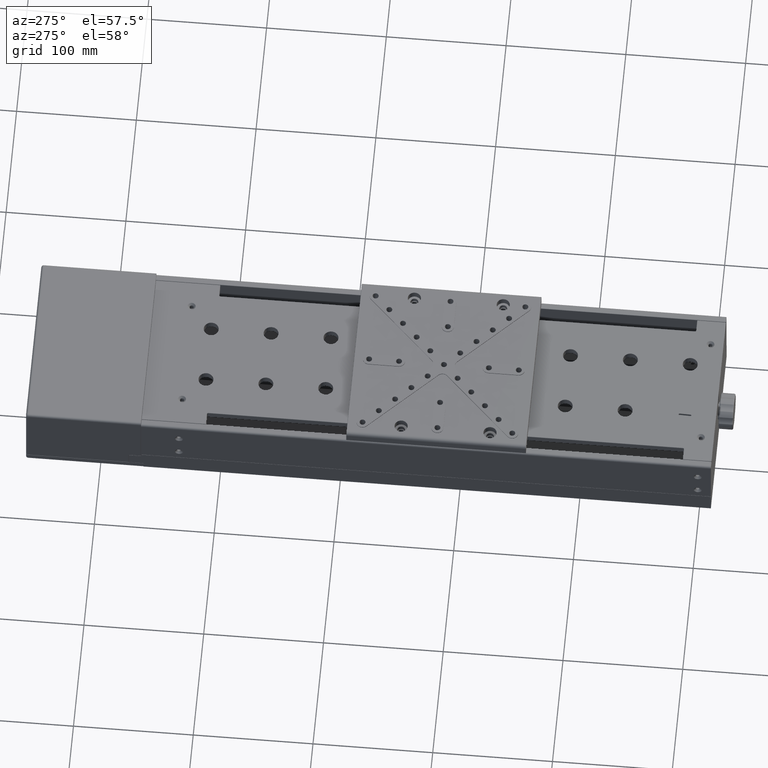
[diagram: clean part render]
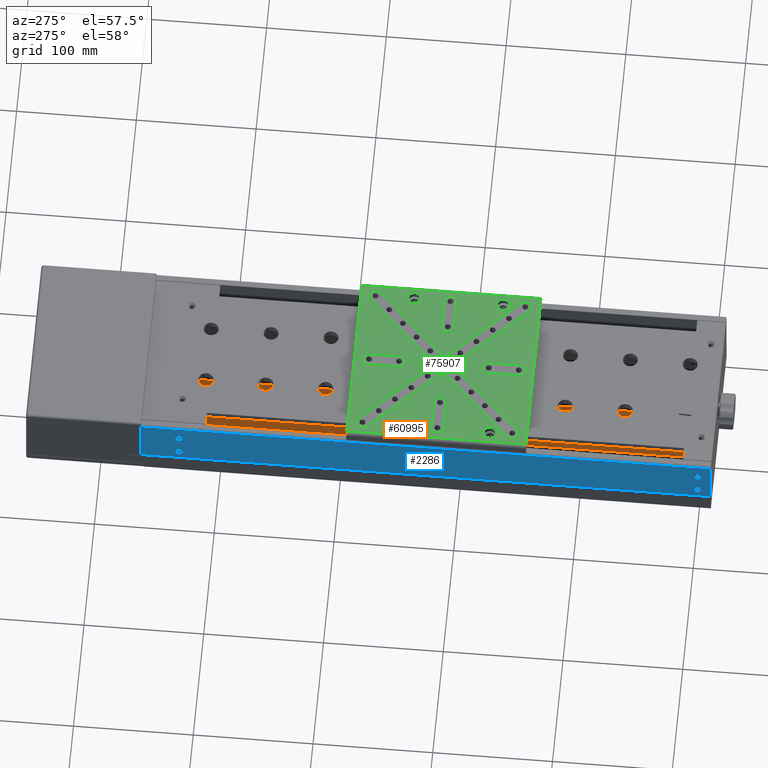
[diagram: same view with three faces highlighted in distinct colors, each labeled with its STEP entity id]
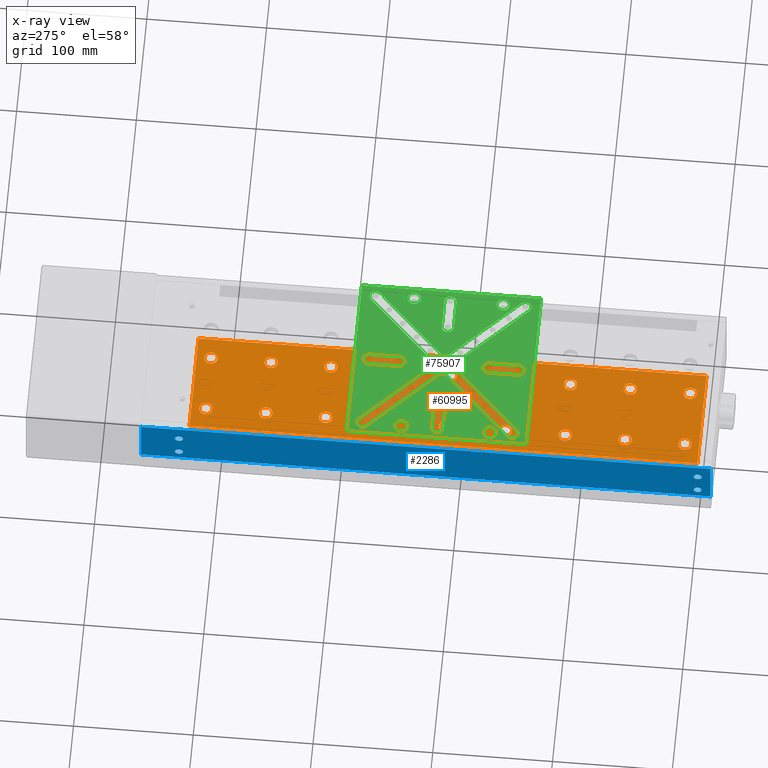
[diagram: x-ray of the same camera — body ghosted, the three highlighted faces saturated]
A machine part, auxiliary view with three faces highlighted in distinct colors.
The next image is the same camera in x-ray (body ghosted, the three faces saturated) — at least one of them is partly hidden behind the body in this view.
Their STEP definitions:

[orange] entity #60995 — the highlighted planar face has unit normal (0, 0, 1).
#36 = CIRCLE ( 'NONE', #78052, 5.500000000000005329 ) ;
#233 = CARTESIAN_POINT ( 'NONE',  ( -95.58543230288090342, 21.53119024182795371, -3.953349746444429602 ) ) ;
#397 = DIRECTION ( 'NONE',  ( 0.000000000000000000, 0.000000000000000000, 1.000000000000000000 ) ) ;
#428 = DIRECTION ( 'NONE',  ( 0.000000000000000000, 1.000000000000000000, 0.000000000000000000 ) ) ;
#708 = AXIS2_PLACEMENT_3D ( 'NONE', #65611, #34259, #4130 ) ;
#981 = DIRECTION ( 'NONE',  ( 0.000000000000000000, 1.000000000000000000, 0.000000000000000000 ) ) ;
#1045 = EDGE_LOOP ( 'NONE', ( #44303, #74152 ) ) ;
#1199 = AXIS2_PLACEMENT_3D ( 'NONE', #75484, #73870, #79975 ) ;
#1612 = DIRECTION ( 'NONE',  ( 0.000000000000000000, 1.000000000000000000, 0.000000000000000000 ) ) ;
#1657 = ORIENTED_EDGE ( 'NONE', *, *, #24803, .F. ) ;
#2285 = AXIS2_PLACEMENT_3D ( 'NONE', #27918, #34415, #15700 ) ;
#2344 = AXIS2_PLACEMENT_3D ( 'NONE', #28220, #77869, #22092 ) ;
#2462 = LINE ( 'NONE', #34199, #73320 ) ;
#2745 = AXIS2_PLACEMENT_3D ( 'NONE', #33445, #71283, #8598 ) ;
#2766 = VERTEX_POINT ( 'NONE', #59259 ) ;
#3158 = VERTEX_POINT ( 'NONE', #40842 ) ;
#3330 = FACE_BOUND ( 'NONE', #1045, .T. ) ;
#4130 = DIRECTION ( 'NONE',  ( 1.000000000000000000, 0.000000000000000000, 0.000000000000000000 ) ) ;
#4469 = CARTESIAN_POINT ( 'NONE',  ( -45.58543230288089632, 116.0311902418279999, -3.953349746444429602 ) ) ;
#4821 = ORIENTED_EDGE ( 'NONE', *, *, #69771, .F. ) ;
#4983 = EDGE_CURVE ( 'NONE', #18869, #24798, #11347, .T. ) ;
#5239 = CIRCLE ( 'NONE', #18244, 5.500000000000005329 ) ;
#5845 = CARTESIAN_POINT ( 'NONE',  ( -45.58543230288089632, 16.03119024182799990, -3.953349746444429602 ) ) ;
#6519 = VERTEX_POINT ( 'NONE', #46123 ) ;
#7262 = VERTEX_POINT ( 'NONE', #62265 ) ;
#7542 = VERTEX_POINT ( 'NONE', #67876 ) ;
#7961 = CIRCLE ( 'NONE', #2745, 5.500000000000005329 ) ;
#7989 = CARTESIAN_POINT ( 'NONE',  ( -45.58543230288089632, 166.0311902418280283, -3.953349746444429602 ) ) ;
#8355 = ORIENTED_EDGE ( 'NONE', *, *, #57483, .F. ) ;
#8480 = CARTESIAN_POINT ( 'NONE',  ( -45.58543230288089632, 171.5311902418279999, -3.953349746444429602 ) ) ;
#8558 = CARTESIAN_POINT ( 'NONE',  ( -45.58543230288079684, 210.5311902418279999, -3.953349746444429602 ) ) ;
#8598 = DIRECTION ( 'NONE',  ( 0.000000000000000000, 1.000000000000000000, 0.000000000000000000 ) ) ;
#8607 = FACE_BOUND ( 'NONE', #59104, .T. ) ;
#8767 = DIRECTION ( 'NONE',  ( 0.000000000000000000, 1.000000000000000000, 0.000000000000000000 ) ) ;
#9035 = AXIS2_PLACEMENT_3D ( 'NONE', #14142, #14553, #70319 ) ;
#9048 = DIRECTION ( 'NONE',  ( 0.000000000000000000, 0.000000000000000000, 1.000000000000000000 ) ) ;
#9072 = CIRCLE ( 'NONE', #40291, 5.500000000000005329 ) ;
#9293 = ORIENTED_EDGE ( 'NONE', *, *, #32876, .F. ) ;
#9587 = EDGE_CURVE ( 'NONE', #47694, #66536, #79772, .T. ) ;
#9826 = AXIS2_PLACEMENT_3D ( 'NONE', #45794, #51886, #70612 ) ;
#9972 = EDGE_CURVE ( 'NONE', #24798, #18869, #65464, .T. ) ;
#10130 = CARTESIAN_POINT ( 'NONE',  ( -95.58543230288090342, 10.53119024182795904, -3.953349746444429602 ) ) ;
#10215 = FACE_BOUND ( 'NONE', #61386, .T. ) ;
#10293 = CIRCLE ( 'NONE', #1199, 5.500000000000001776 ) ;
#10377 = EDGE_CURVE ( 'NONE', #6519, #58423, #35624, .T. ) ;
#10465 = DIRECTION ( 'NONE',  ( 0.000000000000000000, 0.000000000000000000, 1.000000000000000000 ) ) ;
#11141 = LINE ( 'NONE', #41701, #14893 ) ;
#11347 = CIRCLE ( 'NONE', #75055, 5.500000000000005329 ) ;
#11798 = AXIS2_PLACEMENT_3D ( 'NONE', #29139, #35619, #78775 ) ;
#11972 = AXIS2_PLACEMENT_3D ( 'NONE', #50986, #44873, #52998 ) ;
#11989 = VERTEX_POINT ( 'NONE', #36717 ) ;
#12760 = ORIENTED_EDGE ( 'NONE', *, *, #4983, .F. ) ;
#12783 = EDGE_CURVE ( 'NONE', #15372, #53252, #9072, .T. ) ;
#12846 = CARTESIAN_POINT ( 'NONE',  ( -45.58543230288089632, 66.03119024182799990, -3.953349746444429602 ) ) ;
#13018 = CARTESIAN_POINT ( 'NONE',  ( -95.58543230288080395, 166.0311902418280283, -3.953349746444429602 ) ) ;
#13046 = CIRCLE ( 'NONE', #52102, 5.500000000000005329 ) ;
#13060 = EDGE_CURVE ( 'NONE', #24240, #33370, #36, .T. ) ;
#13173 = ORIENTED_EDGE ( 'NONE', *, *, #48314, .F. ) ;
#13301 = CIRCLE ( 'NONE', #11972, 5.500000000000005329 ) ;
#13768 = CARTESIAN_POINT ( 'NONE',  ( -95.58543230288080395, 116.0311902418279999, -3.953349746444429602 ) ) ;
#14018 = EDGE_LOOP ( 'NONE', ( #9293, #45407 ) ) ;
#14142 = CARTESIAN_POINT ( 'NONE',  ( -95.58543230288080395, 216.0311902418279999, -3.953349746444429602 ) ) ;
#14386 = ORIENTED_EDGE ( 'NONE', *, *, #20815, .F. ) ;
#14553 = DIRECTION ( 'NONE',  ( 0.000000000000000000, 0.000000000000000000, 1.000000000000000000 ) ) ;
#14763 = ORIENTED_EDGE ( 'NONE', *, *, #36067, .F. ) ;
#14790 = CIRCLE ( 'NONE', #66992, 5.500000000000005329 ) ;
#14893 = VECTOR ( 'NONE', #77935, 1000.000000000000000 ) ;
#15266 = DIRECTION ( 'NONE',  ( 0.000000000000000000, 0.000000000000000000, 1.000000000000000000 ) ) ;
#15283 = CIRCLE ( 'NONE', #2344, 5.500000000000005329 ) ;
#15286 = AXIS2_PLACEMENT_3D ( 'NONE', #45710, #58320, #20041 ) ;
#15372 = VERTEX_POINT ( 'NONE', #66390 ) ;
#15444 = VERTEX_POINT ( 'NONE', #37857 ) ;
#15700 = DIRECTION ( 'NONE',  ( 0.000000000000000000, 1.000000000000000000, 0.000000000000000000 ) ) ;
#16094 = CARTESIAN_POINT ( 'NONE',  ( -45.58543230288089632, -28.46880975817204984, -3.953349746444429602 ) ) ;
#16191 = AXIS2_PLACEMENT_3D ( 'NONE', #33272, #58505, #58106 ) ;
#17355 = AXIS2_PLACEMENT_3D ( 'NONE', #64357, #26104, #76148 ) ;
#17573 = CIRCLE ( 'NONE', #27998, 5.500000000000001776 ) ;
#17979 = ORIENTED_EDGE ( 'NONE', *, *, #41058, .F. ) ;
#18244 = AXIS2_PLACEMENT_3D ( 'NONE', #47459, #47856, #79193 ) ;
#18593 = DIRECTION ( 'NONE',  ( 0.000000000000000000, 1.000000000000000000, 0.000000000000000000 ) ) ;
#18743 = EDGE_LOOP ( 'NONE', ( #56746, #20705 ) ) ;
#18869 = VERTEX_POINT ( 'NONE', #62576 ) ;
#19222 = DIRECTION ( 'NONE',  ( 0.000000000000000000, 1.000000000000000000, 0.000000000000000000 ) ) ;
#19539 = VERTEX_POINT ( 'NONE', #29441 ) ;
#19692 = DIRECTION ( 'NONE',  ( 0.000000000000000000, 1.000000000000000000, 0.000000000000000000 ) ) ;
#19991 = CARTESIAN_POINT ( 'NONE',  ( -45.58543230288089632, -89.46880975817200010, -3.953349746444429602 ) ) ;
#20041 = DIRECTION ( 'NONE',  ( 0.000000000000000000, 1.000000000000000000, 0.000000000000000000 ) ) ;
#20274 = VECTOR ( 'NONE', #33666, 1000.000000000000000 ) ;
#20566 = VERTEX_POINT ( 'NONE', #35039 ) ;
#20630 = LINE ( 'NONE', #34461, #20274 ) ;
#20705 = ORIENTED_EDGE ( 'NONE', *, *, #77302, .F. ) ;
#20815 = EDGE_CURVE ( 'NONE', #43706, #30448, #27640, .T. ) ;
#20823 = FACE_BOUND ( 'NONE', #79489, .T. ) ;
#21020 = CIRCLE ( 'NONE', #66553, 5.500000000000005329 ) ;
#21623 = FACE_BOUND ( 'NONE', #59635, .T. ) ;
#21636 = VERTEX_POINT ( 'NONE', #37257 ) ;
#22092 = DIRECTION ( 'NONE',  ( 0.000000000000000000, 1.000000000000000000, 0.000000000000000000 ) ) ;
#22167 = ORIENTED_EDGE ( 'NONE', *, *, #49437, .F. ) ;
#22764 = VERTEX_POINT ( 'NONE', #37276 ) ;
#24051 = DIRECTION ( 'NONE',  ( 0.000000000000000000, 0.000000000000000000, 1.000000000000000000 ) ) ;
#24240 = VERTEX_POINT ( 'NONE', #48861 ) ;
#24798 = VERTEX_POINT ( 'NONE', #32783 ) ;
#24803 = EDGE_CURVE ( 'NONE', #22764, #36530, #39026, .T. ) ;
#25364 = DIRECTION ( 'NONE',  ( 0.000000000000000000, 1.000000000000000000, 0.000000000000000000 ) ) ;
#25541 = EDGE_LOOP ( 'NONE', ( #49421, #8355 ) ) ;
#25678 = AXIS2_PLACEMENT_3D ( 'NONE', #59520, #9048, #52220 ) ;
#26104 = DIRECTION ( 'NONE',  ( 0.000000000000000000, 0.000000000000000000, 1.000000000000000000 ) ) ;
#26484 = EDGE_CURVE ( 'NONE', #36530, #22764, #38692, .T. ) ;
#26650 = EDGE_LOOP ( 'NONE', ( #51110, #77524 ) ) ;
#26912 = EDGE_CURVE ( 'NONE', #7262, #27941, #2462, .T. ) ;
#27001 = DIRECTION ( 'NONE',  ( 0.000000000000000000, 0.000000000000000000, 1.000000000000000000 ) ) ;
#27479 = VERTEX_POINT ( 'NONE', #48378 ) ;
#27548 = ORIENTED_EDGE ( 'NONE', *, *, #71012, .F. ) ;
#27634 = AXIS2_PLACEMENT_3D ( 'NONE', #43963, #62705, #43173 ) ;
#27640 = CIRCLE ( 'NONE', #60182, 5.500000000000005329 ) ;
#27918 = CARTESIAN_POINT ( 'NONE',  ( -95.58543230288090342, -33.96880975817204984, -3.953349746444429602 ) ) ;
#27930 = VERTEX_POINT ( 'NONE', #47464 ) ;
#27941 = VERTEX_POINT ( 'NONE', #72290 ) ;
#27998 = AXIS2_PLACEMENT_3D ( 'NONE', #5845, #43686, #25364 ) ;
#28003 = VERTEX_POINT ( 'NONE', #233 ) ;
#28095 = DIRECTION ( 'NONE',  ( 0.000000000000000000, 1.000000000000000000, 0.000000000000000000 ) ) ;
#28155 = FACE_BOUND ( 'NONE', #26650, .T. ) ;
#28159 = VERTEX_POINT ( 'NONE', #44961 ) ;
#28220 = CARTESIAN_POINT ( 'NONE',  ( -95.58543230288080395, 216.0311902418279999, -3.953349746444429602 ) ) ;
#28759 = EDGE_LOOP ( 'NONE', ( #12760, #39794 ) ) ;
#29139 = CARTESIAN_POINT ( 'NONE',  ( -95.58543230288090342, 66.03119024182799990, -3.953349746444429602 ) ) ;
#29441 = CARTESIAN_POINT ( 'NONE',  ( -45.58543230288079684, 321.5311902418280283, -3.953349746444429602 ) ) ;
#29915 = CARTESIAN_POINT ( 'NONE',  ( -45.58543230288089632, 166.0311902418280283, -3.953349746444429602 ) ) ;
#30334 = CARTESIAN_POINT ( 'NONE',  ( -95.58543230288080395, 271.5311902418279715, -3.953349746444429602 ) ) ;
#30448 = VERTEX_POINT ( 'NONE', #32072 ) ;
#31368 = CARTESIAN_POINT ( 'NONE',  ( -95.58543230288080395, 266.0311902418279715, -3.953349746444429602 ) ) ;
#31408 = ORIENTED_EDGE ( 'NONE', *, *, #74733, .F. ) ;
#31458 = EDGE_CURVE ( 'NONE', #54818, #15444, #45121, .T. ) ;
#31588 = EDGE_LOOP ( 'NONE', ( #71521, #48707 ) ) ;
#31869 = CIRCLE ( 'NONE', #77360, 5.500000000000005329 ) ;
#31997 = AXIS2_PLACEMENT_3D ( 'NONE', #36692, #24051, #37088 ) ;
#32072 = CARTESIAN_POINT ( 'NONE',  ( -95.58543230288080395, 260.5311902418280283, -3.953349746444429602 ) ) ;
#32105 = DIRECTION ( 'NONE',  ( 0.000000000000000000, 1.000000000000000000, 0.000000000000000000 ) ) ;
#32574 = VERTEX_POINT ( 'NONE', #52763 ) ;
#32756 = DIRECTION ( 'NONE',  ( 1.367422393877953933E-16, 1.000000000000000000, 0.000000000000000000 ) ) ;
#32783 = CARTESIAN_POINT ( 'NONE',  ( -45.58543230288089632, 110.5311902418279999, -3.953349746444429602 ) ) ;
#32832 = DIRECTION ( 'NONE',  ( 0.000000000000000000, 0.000000000000000000, 1.000000000000000000 ) ) ;
#32876 = EDGE_CURVE ( 'NONE', #28003, #47597, #10293, .T. ) ;
#32902 = EDGE_CURVE ( 'NONE', #3158, #60980, #36268, .T. ) ;
#32930 = DIRECTION ( 'NONE',  ( 0.000000000000000000, 0.000000000000000000, 1.000000000000000000 ) ) ;
#33272 = CARTESIAN_POINT ( 'NONE',  ( -95.58543230288090342, -83.96880975817198589, -3.953349746444429602 ) ) ;
#33370 = VERTEX_POINT ( 'NONE', #19991 ) ;
#33424 = CIRCLE ( 'NONE', #2285, 5.499999999999998224 ) ;
#33445 = CARTESIAN_POINT ( 'NONE',  ( -95.58543230288080395, 166.0311902418280283, -3.953349746444429602 ) ) ;
#33457 = FACE_BOUND ( 'NONE', #47902, .T. ) ;
#33620 = CARTESIAN_POINT ( 'NONE',  ( -45.58543230288079684, 266.0311902418279715, -3.953349746444429602 ) ) ;
#33666 = DIRECTION ( 'NONE',  ( -8.244204130254198932E-18, -1.000000000000000000, 0.000000000000000000 ) ) ;
#33866 = FACE_BOUND ( 'NONE', #47918, .T. ) ;
#33934 = CARTESIAN_POINT ( 'NONE',  ( -95.58543230288090342, 16.03119024182795016, -3.953349746444429602 ) ) ;
#34199 = CARTESIAN_POINT ( 'NONE',  ( -139.5854323028810029, -95.96880975817200010, -3.953349746444429602 ) ) ;
#34259 = DIRECTION ( 'NONE',  ( 0.000000000000000000, 0.000000000000000000, 1.000000000000000000 ) ) ;
#34415 = DIRECTION ( 'NONE',  ( 0.000000000000000000, 0.000000000000000000, 1.000000000000000000 ) ) ;
#34461 = CARTESIAN_POINT ( 'NONE',  ( -27.28543230288079968, 376.0311902418280283, -3.953349746444429602 ) ) ;
#34475 = EDGE_CURVE ( 'NONE', #27941, #2766, #53087, .T. ) ;
#34654 = FACE_BOUND ( 'NONE', #45934, .T. ) ;
#35039 = CARTESIAN_POINT ( 'NONE',  ( -95.58543230288080395, 160.5311902418280283, -3.953349746444429602 ) ) ;
#35053 = CARTESIAN_POINT ( 'NONE',  ( -45.58543230288089632, 10.53119024182798036, -3.953349746444429602 ) ) ;
#35619 = DIRECTION ( 'NONE',  ( 0.000000000000000000, 0.000000000000000000, 1.000000000000000000 ) ) ;
#35624 = CIRCLE ( 'NONE', #52499, 5.500000000000005329 ) ;
#36047 = DIRECTION ( 'NONE',  ( 0.000000000000000000, 0.000000000000000000, 1.000000000000000000 ) ) ;
#36067 = EDGE_CURVE ( 'NONE', #68852, #21636, #40580, .T. ) ;
#36268 = CIRCLE ( 'NONE', #53209, 5.500000000000001776 ) ;
#36530 = VERTEX_POINT ( 'NONE', #56035 ) ;
#36641 = DIRECTION ( 'NONE',  ( 0.000000000000000000, 1.000000000000000000, 0.000000000000000000 ) ) ;
#36675 = ORIENTED_EDGE ( 'NONE', *, *, #71474, .F. ) ;
#36692 = CARTESIAN_POINT ( 'NONE',  ( -45.58543230288079684, 216.0311902418279999, -3.953349746444429602 ) ) ;
#36717 = CARTESIAN_POINT ( 'NONE',  ( -95.58543230288080395, 210.5311902418279999, -3.953349746444429602 ) ) ;
#37088 = DIRECTION ( 'NONE',  ( 0.000000000000000000, 1.000000000000000000, 0.000000000000000000 ) ) ;
#37257 = CARTESIAN_POINT ( 'NONE',  ( -95.58543230288090342, -28.46880975817204984, -3.953349746444429602 ) ) ;
#37276 = CARTESIAN_POINT ( 'NONE',  ( -45.58543230288089632, 60.53119024182799990, -3.953349746444429602 ) ) ;
#37857 = CARTESIAN_POINT ( 'NONE',  ( -45.58543230288089632, 160.5311902418280283, -3.953349746444429602 ) ) ;
#37860 = DIRECTION ( 'NONE',  ( 0.000000000000000000, 0.000000000000000000, 1.000000000000000000 ) ) ;
#38034 = CARTESIAN_POINT ( 'NONE',  ( -45.58543230288089632, 16.03119024182799990, -3.953349746444429602 ) ) ;
#38692 = CIRCLE ( 'NONE', #25678, 5.500000000000005329 ) ;
#38915 = DIRECTION ( 'NONE',  ( 0.000000000000000000, 1.000000000000000000, 0.000000000000000000 ) ) ;
#39026 = CIRCLE ( 'NONE', #66297, 5.500000000000005329 ) ;
#39051 = CIRCLE ( 'NONE', #68987, 5.500000000000001776 ) ;
#39129 = VECTOR ( 'NONE', #32756, 1000.000000000000000 ) ;
#39147 = CIRCLE ( 'NONE', #46751, 5.500000000000005329 ) ;
#39707 = CARTESIAN_POINT ( 'NONE',  ( -95.58543230288080395, 316.0311902418280283, -3.953349746444429602 ) ) ;
#39794 = ORIENTED_EDGE ( 'NONE', *, *, #9972, .F. ) ;
#40291 = AXIS2_PLACEMENT_3D ( 'NONE', #54870, #74777, #18593 ) ;
#40394 = CIRCLE ( 'NONE', #11798, 5.500000000000005329 ) ;
#40580 = CIRCLE ( 'NONE', #27634, 5.499999999999998224 ) ;
#40842 = CARTESIAN_POINT ( 'NONE',  ( -45.58543230288089632, 21.53119024182799990, -3.953349746444429602 ) ) ;
#41058 = EDGE_CURVE ( 'NONE', #7542, #11989, #74079, .T. ) ;
#41166 = FACE_BOUND ( 'NONE', #58717, .T. ) ;
#41362 = EDGE_LOOP ( 'NONE', ( #45630, #63984, #73222, #4821 ) ) ;
#41603 = CIRCLE ( 'NONE', #62359, 5.500000000000005329 ) ;
#41696 = ORIENTED_EDGE ( 'NONE', *, *, #75967, .F. ) ;
#41701 = CARTESIAN_POINT ( 'NONE',  ( -139.5854323028808039, 328.2311902418280170, -3.953349746444429602 ) ) ;
#42121 = AXIS2_PLACEMENT_3D ( 'NONE', #39707, #76741, #64548 ) ;
#42171 = DIRECTION ( 'NONE',  ( 0.000000000000000000, 1.000000000000000000, 0.000000000000000000 ) ) ;
#42480 = VERTEX_POINT ( 'NONE', #56844 ) ;
#42913 = EDGE_CURVE ( 'NONE', #42480, #27479, #39147, .T. ) ;
#43173 = DIRECTION ( 'NONE',  ( 0.000000000000000000, 1.000000000000000000, 0.000000000000000000 ) ) ;
#43436 = EDGE_CURVE ( 'NONE', #52247, #28159, #13046, .T. ) ;
#43591 = EDGE_LOOP ( 'NONE', ( #45435, #58918 ) ) ;
#43686 = DIRECTION ( 'NONE',  ( 0.000000000000000000, 0.000000000000000000, 1.000000000000000000 ) ) ;
#43706 = VERTEX_POINT ( 'NONE', #30334 ) ;
#43963 = CARTESIAN_POINT ( 'NONE',  ( -95.58543230288090342, -33.96880975817204984, -3.953349746444429602 ) ) ;
#44303 = ORIENTED_EDGE ( 'NONE', *, *, #79908, .F. ) ;
#44873 = DIRECTION ( 'NONE',  ( 0.000000000000000000, 0.000000000000000000, 1.000000000000000000 ) ) ;
#44961 = CARTESIAN_POINT ( 'NONE',  ( -45.58543230288079684, 271.5311902418279715, -3.953349746444429602 ) ) ;
#45008 = CIRCLE ( 'NONE', #31997, 5.500000000000005329 ) ;
#45121 = CIRCLE ( 'NONE', #47739, 5.500000000000005329 ) ;
#45407 = ORIENTED_EDGE ( 'NONE', *, *, #50729, .F. ) ;
#45422 = DIRECTION ( 'NONE',  ( 0.000000000000000000, 0.000000000000000000, 1.000000000000000000 ) ) ;
#45435 = ORIENTED_EDGE ( 'NONE', *, *, #10377, .F. ) ;
#45630 = ORIENTED_EDGE ( 'NONE', *, *, #55214, .F. ) ;
#45710 = CARTESIAN_POINT ( 'NONE',  ( -95.58543230288080395, 116.0311902418279999, -3.953349746444429602 ) ) ;
#45794 = CARTESIAN_POINT ( 'NONE',  ( -45.58543230288089632, -33.96880975817204984, -3.953349746444429602 ) ) ;
#45932 = CARTESIAN_POINT ( 'NONE',  ( -45.58543230288079684, 316.0311902418280283, -3.953349746444429602 ) ) ;
#45934 = EDGE_LOOP ( 'NONE', ( #27548, #14763 ) ) ;
#46041 = CARTESIAN_POINT ( 'NONE',  ( -95.58543230288080395, 310.5311902418280283, -3.953349746444429602 ) ) ;
#46069 = FACE_BOUND ( 'NONE', #14018, .T. ) ;
#46123 = CARTESIAN_POINT ( 'NONE',  ( -95.58543230288090342, -78.46880975817200010, -3.953349746444429602 ) ) ;
#46608 = EDGE_CURVE ( 'NONE', #66083, #73574, #80084, .T. ) ;
#46751 = AXIS2_PLACEMENT_3D ( 'NONE', #13768, #397, #32105 ) ;
#46899 = ORIENTED_EDGE ( 'NONE', *, *, #69932, .F. ) ;
#47221 = DIRECTION ( 'NONE',  ( 0.000000000000000000, 0.000000000000000000, 1.000000000000000000 ) ) ;
#47459 = CARTESIAN_POINT ( 'NONE',  ( -45.58543230288079684, 316.0311902418280283, -3.953349746444429602 ) ) ;
#47464 = CARTESIAN_POINT ( 'NONE',  ( -27.28543230288079968, 328.2311902418280170, -3.953349746444429602 ) ) ;
#47597 = VERTEX_POINT ( 'NONE', #10130 ) ;
#47694 = VERTEX_POINT ( 'NONE', #61438 ) ;
#47739 = AXIS2_PLACEMENT_3D ( 'NONE', #7989, #45422, #8767 ) ;
#47781 = CIRCLE ( 'NONE', #15286, 5.500000000000005329 ) ;
#47856 = DIRECTION ( 'NONE',  ( 0.000000000000000000, 0.000000000000000000, 1.000000000000000000 ) ) ;
#47902 = EDGE_LOOP ( 'NONE', ( #71635, #79802 ) ) ;
#47918 = EDGE_LOOP ( 'NONE', ( #78748, #59496 ) ) ;
#48314 = EDGE_CURVE ( 'NONE', #27479, #42480, #47781, .T. ) ;
#48378 = CARTESIAN_POINT ( 'NONE',  ( -95.58543230288080395, 110.5311902418279999, -3.953349746444429602 ) ) ;
#48707 = ORIENTED_EDGE ( 'NONE', *, *, #78232, .F. ) ;
#48861 = CARTESIAN_POINT ( 'NONE',  ( -45.58543230288089632, -78.46880975817200010, -3.953349746444429602 ) ) ;
#49247 = DIRECTION ( 'NONE',  ( 0.000000000000000000, 0.000000000000000000, 1.000000000000000000 ) ) ;
#49421 = ORIENTED_EDGE ( 'NONE', *, *, #13060, .F. ) ;
#49437 = EDGE_CURVE ( 'NONE', #15444, #54818, #50568, .T. ) ;
#49516 = CARTESIAN_POINT ( 'NONE',  ( -45.58543230288079684, 260.5311902418280283, -3.953349746444429602 ) ) ;
#50338 = EDGE_LOOP ( 'NONE', ( #17979, #36675 ) ) ;
#50568 = CIRCLE ( 'NONE', #64875, 5.500000000000005329 ) ;
#50729 = EDGE_CURVE ( 'NONE', #47597, #28003, #39051, .T. ) ;
#50986 = CARTESIAN_POINT ( 'NONE',  ( -95.58543230288080395, 316.0311902418280283, -3.953349746444429602 ) ) ;
#51110 = ORIENTED_EDGE ( 'NONE', *, *, #67617, .F. ) ;
#51298 = CIRCLE ( 'NONE', #16191, 5.500000000000005329 ) ;
#51348 = VERTEX_POINT ( 'NONE', #59866 ) ;
#51352 = AXIS2_PLACEMENT_3D ( 'NONE', #13018, #37860, #62703 ) ;
#51444 = ORIENTED_EDGE ( 'NONE', *, *, #42913, .F. ) ;
#51886 = DIRECTION ( 'NONE',  ( 0.000000000000000000, 0.000000000000000000, 1.000000000000000000 ) ) ;
#52102 = AXIS2_PLACEMENT_3D ( 'NONE', #33620, #75966, #64970 ) ;
#52220 = DIRECTION ( 'NONE',  ( 0.000000000000000000, 1.000000000000000000, 0.000000000000000000 ) ) ;
#52247 = VERTEX_POINT ( 'NONE', #49516 ) ;
#52469 = CIRCLE ( 'NONE', #17355, 5.499999999999998224 ) ;
#52499 = AXIS2_PLACEMENT_3D ( 'NONE', #65840, #10465, #77644 ) ;
#52763 = CARTESIAN_POINT ( 'NONE',  ( -95.58543230288080395, 171.5311902418279999, -3.953349746444429602 ) ) ;
#52875 = ORIENTED_EDGE ( 'NONE', *, *, #31458, .F. ) ;
#52994 = FACE_OUTER_BOUND ( 'NONE', #41362, .T. ) ;
#52998 = DIRECTION ( 'NONE',  ( 0.000000000000000000, 1.000000000000000000, 0.000000000000000000 ) ) ;
#53087 = LINE ( 'NONE', #77890, #39129 ) ;
#53209 = AXIS2_PLACEMENT_3D ( 'NONE', #38034, #74683, #55177 ) ;
#53252 = VERTEX_POINT ( 'NONE', #8558 ) ;
#53555 = DIRECTION ( 'NONE',  ( 0.000000000000000000, 1.000000000000000000, 0.000000000000000000 ) ) ;
#54093 = CARTESIAN_POINT ( 'NONE',  ( -45.58543230288089632, -39.46880975817205695, -3.953349746444429602 ) ) ;
#54818 = VERTEX_POINT ( 'NONE', #8480 ) ;
#54870 = CARTESIAN_POINT ( 'NONE',  ( -45.58543230288079684, 216.0311902418279999, -3.953349746444429602 ) ) ;
#55177 = DIRECTION ( 'NONE',  ( 0.000000000000000000, 1.000000000000000000, 0.000000000000000000 ) ) ;
#55214 = EDGE_CURVE ( 'NONE', #2766, #27930, #11141, .T. ) ;
#56035 = CARTESIAN_POINT ( 'NONE',  ( -45.58543230288089632, 71.53119024182799990, -3.953349746444429602 ) ) ;
#56209 = DIRECTION ( 'NONE',  ( 0.000000000000000000, 0.000000000000000000, 1.000000000000000000 ) ) ;
#56746 = ORIENTED_EDGE ( 'NONE', *, *, #9587, .F. ) ;
#56844 = CARTESIAN_POINT ( 'NONE',  ( -95.58543230288080395, 121.5311902418279999, -3.953349746444429602 ) ) ;
#57087 = CARTESIAN_POINT ( 'NONE',  ( -95.58543230288090342, 66.03119024182799990, -3.953349746444429602 ) ) ;
#57483 = EDGE_CURVE ( 'NONE', #33370, #24240, #21020, .T. ) ;
#57493 = DIRECTION ( 'NONE',  ( 0.000000000000000000, 0.000000000000000000, 1.000000000000000000 ) ) ;
#57571 = DIRECTION ( 'NONE',  ( 0.000000000000000000, 0.000000000000000000, 1.000000000000000000 ) ) ;
#58106 = DIRECTION ( 'NONE',  ( 0.000000000000000000, 1.000000000000000000, 0.000000000000000000 ) ) ;
#58293 = PLANE ( 'NONE',  #708 ) ;
#58320 = DIRECTION ( 'NONE',  ( 0.000000000000000000, 0.000000000000000000, 1.000000000000000000 ) ) ;
#58423 = VERTEX_POINT ( 'NONE', #60307 ) ;
#58505 = DIRECTION ( 'NONE',  ( 0.000000000000000000, 0.000000000000000000, 1.000000000000000000 ) ) ;
#58717 = EDGE_LOOP ( 'NONE', ( #51444, #13173 ) ) ;
#58918 = ORIENTED_EDGE ( 'NONE', *, *, #61803, .F. ) ;
#59104 = EDGE_LOOP ( 'NONE', ( #75521, #41696 ) ) ;
#59122 = EDGE_LOOP ( 'NONE', ( #14386, #31408 ) ) ;
#59259 = CARTESIAN_POINT ( 'NONE',  ( -113.8854323028808153, 328.2311902418280170, -3.953349746444429602 ) ) ;
#59489 = FACE_BOUND ( 'NONE', #50338, .T. ) ;
#59496 = ORIENTED_EDGE ( 'NONE', *, *, #62437, .F. ) ;
#59520 = CARTESIAN_POINT ( 'NONE',  ( -45.58543230288089632, 66.03119024182799990, -3.953349746444429602 ) ) ;
#59635 = EDGE_LOOP ( 'NONE', ( #52875, #22167 ) ) ;
#59866 = CARTESIAN_POINT ( 'NONE',  ( -95.58543230288090342, 60.53119024182799990, -3.953349746444429602 ) ) ;
#59902 = FACE_BOUND ( 'NONE', #43591, .T. ) ;
#60144 = EDGE_CURVE ( 'NONE', #32574, #20566, #65672, .T. ) ;
#60182 = AXIS2_PLACEMENT_3D ( 'NONE', #31368, #56209, #428 ) ;
#60307 = CARTESIAN_POINT ( 'NONE',  ( -95.58543230288090342, -89.46880975817200010, -3.953349746444429602 ) ) ;
#60504 = DIRECTION ( 'NONE',  ( 0.000000000000000000, 1.000000000000000000, 0.000000000000000000 ) ) ;
#60900 = CARTESIAN_POINT ( 'NONE',  ( -45.58543230288089632, -83.96880975817198589, -3.953349746444429602 ) ) ;
#60980 = VERTEX_POINT ( 'NONE', #35053 ) ;
#60995 = ADVANCED_FACE ( 'NONE', ( #77018, #59902, #70509, #34654, #33866, #46069, #10215, #28155, #64407, #41166, #21623, #8607, #33457, #59489, #20823, #77800, #3330, #70892, #52994 ), #58293, .T. ) ;
#61386 = EDGE_LOOP ( 'NONE', ( #73608, #1657 ) ) ;
#61438 = CARTESIAN_POINT ( 'NONE',  ( -95.58543230288080395, 321.5311902418280283, -3.953349746444429602 ) ) ;
#61803 = EDGE_CURVE ( 'NONE', #58423, #6519, #51298, .T. ) ;
#62265 = CARTESIAN_POINT ( 'NONE',  ( -27.28543230288079968, -95.96880975817200010, -3.953349746444429602 ) ) ;
#62359 = AXIS2_PLACEMENT_3D ( 'NONE', #66772, #49247, #36641 ) ;
#62437 = EDGE_CURVE ( 'NONE', #60980, #3158, #17573, .T. ) ;
#62524 = DIRECTION ( 'NONE',  ( 0.000000000000000000, 1.000000000000000000, 0.000000000000000000 ) ) ;
#62576 = CARTESIAN_POINT ( 'NONE',  ( -45.58543230288089632, 121.5311902418279999, -3.953349746444429602 ) ) ;
#62703 = DIRECTION ( 'NONE',  ( 0.000000000000000000, 1.000000000000000000, 0.000000000000000000 ) ) ;
#62705 = DIRECTION ( 'NONE',  ( 0.000000000000000000, 0.000000000000000000, 1.000000000000000000 ) ) ;
#62952 = EDGE_CURVE ( 'NONE', #53252, #15372, #45008, .T. ) ;
#63948 = DIRECTION ( 'NONE',  ( -1.000000000000000000, -1.581037976457539980E-17, 0.000000000000000000 ) ) ;
#63984 = ORIENTED_EDGE ( 'NONE', *, *, #34475, .F. ) ;
#64260 = CARTESIAN_POINT ( 'NONE',  ( -95.58543230288090342, 71.53119024182799990, -3.953349746444429602 ) ) ;
#64357 = CARTESIAN_POINT ( 'NONE',  ( -45.58543230288089632, -33.96880975817204984, -3.953349746444429602 ) ) ;
#64407 = FACE_BOUND ( 'NONE', #28759, .T. ) ;
#64548 = DIRECTION ( 'NONE',  ( 0.000000000000000000, 1.000000000000000000, 0.000000000000000000 ) ) ;
#64875 = AXIS2_PLACEMENT_3D ( 'NONE', #29915, #27001, #981 ) ;
#64970 = DIRECTION ( 'NONE',  ( 0.000000000000000000, 1.000000000000000000, 0.000000000000000000 ) ) ;
#65464 = CIRCLE ( 'NONE', #74584, 5.500000000000005329 ) ;
#65611 = CARTESIAN_POINT ( 'NONE',  ( -145.5854323028810029, -109.9688097581720001, -3.953349746444429602 ) ) ;
#65672 = CIRCLE ( 'NONE', #51352, 5.500000000000005329 ) ;
#65840 = CARTESIAN_POINT ( 'NONE',  ( -95.58543230288090342, -83.96880975817198589, -3.953349746444429602 ) ) ;
#66083 = VERTEX_POINT ( 'NONE', #16094 ) ;
#66297 = AXIS2_PLACEMENT_3D ( 'NONE', #12846, #74730, #62524 ) ;
#66390 = CARTESIAN_POINT ( 'NONE',  ( -45.58543230288079684, 221.5311902418279999, -3.953349746444429602 ) ) ;
#66536 = VERTEX_POINT ( 'NONE', #46041 ) ;
#66553 = AXIS2_PLACEMENT_3D ( 'NONE', #60900, #36047, #60504 ) ;
#66772 = CARTESIAN_POINT ( 'NONE',  ( -95.58543230288080395, 266.0311902418279715, -3.953349746444429602 ) ) ;
#66992 = AXIS2_PLACEMENT_3D ( 'NONE', #45932, #32930, #1612 ) ;
#67617 = EDGE_CURVE ( 'NONE', #78631, #51348, #31869, .T. ) ;
#67876 = CARTESIAN_POINT ( 'NONE',  ( -95.58543230288080395, 221.5311902418279999, -3.953349746444429602 ) ) ;
#68852 = VERTEX_POINT ( 'NONE', #73896 ) ;
#68969 = CARTESIAN_POINT ( 'NONE',  ( -45.58543230288079684, 310.5311902418280283, -3.953349746444429602 ) ) ;
#68987 = AXIS2_PLACEMENT_3D ( 'NONE', #33934, #57571, #19692 ) ;
#69771 = EDGE_CURVE ( 'NONE', #27930, #7262, #20630, .T. ) ;
#69860 = CARTESIAN_POINT ( 'NONE',  ( -45.58543230288089632, -83.96880975817198589, -3.953349746444429602 ) ) ;
#69932 = EDGE_CURVE ( 'NONE', #28159, #52247, #74870, .T. ) ;
#70319 = DIRECTION ( 'NONE',  ( 0.000000000000000000, 1.000000000000000000, 0.000000000000000000 ) ) ;
#70509 = FACE_BOUND ( 'NONE', #31588, .T. ) ;
#70612 = DIRECTION ( 'NONE',  ( 0.000000000000000000, 1.000000000000000000, 0.000000000000000000 ) ) ;
#70892 = FACE_BOUND ( 'NONE', #18743, .T. ) ;
#70955 = AXIS2_PLACEMENT_3D ( 'NONE', #73518, #71910, #42171 ) ;
#71012 = EDGE_CURVE ( 'NONE', #21636, #68852, #33424, .T. ) ;
#71283 = DIRECTION ( 'NONE',  ( 0.000000000000000000, 0.000000000000000000, 1.000000000000000000 ) ) ;
#71301 = VERTEX_POINT ( 'NONE', #68969 ) ;
#71474 = EDGE_CURVE ( 'NONE', #11989, #7542, #15283, .T. ) ;
#71521 = ORIENTED_EDGE ( 'NONE', *, *, #46608, .F. ) ;
#71635 = ORIENTED_EDGE ( 'NONE', *, *, #12783, .F. ) ;
#71910 = DIRECTION ( 'NONE',  ( 0.000000000000000000, 0.000000000000000000, 1.000000000000000000 ) ) ;
#72290 = CARTESIAN_POINT ( 'NONE',  ( -113.8854323028810001, -95.96880975817200010, -3.953349746444429602 ) ) ;
#73222 = ORIENTED_EDGE ( 'NONE', *, *, #26912, .F. ) ;
#73320 = VECTOR ( 'NONE', #63948, 1000.000000000000000 ) ;
#73518 = CARTESIAN_POINT ( 'NONE',  ( -45.58543230288079684, 266.0311902418279715, -3.953349746444429602 ) ) ;
#73574 = VERTEX_POINT ( 'NONE', #54093 ) ;
#73608 = ORIENTED_EDGE ( 'NONE', *, *, #26484, .F. ) ;
#73870 = DIRECTION ( 'NONE',  ( 0.000000000000000000, 0.000000000000000000, 1.000000000000000000 ) ) ;
#73896 = CARTESIAN_POINT ( 'NONE',  ( -95.58543230288090342, -39.46880975817205695, -3.953349746444429602 ) ) ;
#73942 = EDGE_CURVE ( 'NONE', #71301, #19539, #5239, .T. ) ;
#74079 = CIRCLE ( 'NONE', #9035, 5.500000000000005329 ) ;
#74152 = ORIENTED_EDGE ( 'NONE', *, *, #73942, .F. ) ;
#74352 = EDGE_CURVE ( 'NONE', #51348, #78631, #40394, .T. ) ;
#74486 = ORIENTED_EDGE ( 'NONE', *, *, #43436, .F. ) ;
#74584 = AXIS2_PLACEMENT_3D ( 'NONE', #4469, #47221, #28095 ) ;
#74683 = DIRECTION ( 'NONE',  ( 0.000000000000000000, 0.000000000000000000, 1.000000000000000000 ) ) ;
#74730 = DIRECTION ( 'NONE',  ( 0.000000000000000000, 0.000000000000000000, 1.000000000000000000 ) ) ;
#74733 = EDGE_CURVE ( 'NONE', #30448, #43706, #41603, .T. ) ;
#74777 = DIRECTION ( 'NONE',  ( 0.000000000000000000, 0.000000000000000000, 1.000000000000000000 ) ) ;
#74870 = CIRCLE ( 'NONE', #70955, 5.500000000000005329 ) ;
#75055 = AXIS2_PLACEMENT_3D ( 'NONE', #78743, #15266, #53555 ) ;
#75484 = CARTESIAN_POINT ( 'NONE',  ( -95.58543230288090342, 16.03119024182795016, -3.953349746444429602 ) ) ;
#75521 = ORIENTED_EDGE ( 'NONE', *, *, #60144, .F. ) ;
#75966 = DIRECTION ( 'NONE',  ( 0.000000000000000000, 0.000000000000000000, 1.000000000000000000 ) ) ;
#75967 = EDGE_CURVE ( 'NONE', #20566, #32574, #7961, .T. ) ;
#76148 = DIRECTION ( 'NONE',  ( 0.000000000000000000, 1.000000000000000000, 0.000000000000000000 ) ) ;
#76741 = DIRECTION ( 'NONE',  ( 0.000000000000000000, 0.000000000000000000, 1.000000000000000000 ) ) ;
#77018 = FACE_BOUND ( 'NONE', #25541, .T. ) ;
#77302 = EDGE_CURVE ( 'NONE', #66536, #47694, #13301, .T. ) ;
#77360 = AXIS2_PLACEMENT_3D ( 'NONE', #57087, #57493, #19222 ) ;
#77524 = ORIENTED_EDGE ( 'NONE', *, *, #74352, .F. ) ;
#77644 = DIRECTION ( 'NONE',  ( 0.000000000000000000, 1.000000000000000000, 0.000000000000000000 ) ) ;
#77800 = FACE_BOUND ( 'NONE', #59122, .T. ) ;
#77869 = DIRECTION ( 'NONE',  ( 0.000000000000000000, 0.000000000000000000, 1.000000000000000000 ) ) ;
#77890 = CARTESIAN_POINT ( 'NONE',  ( -113.8854323028810001, -109.9688097581720001, -3.953349746444429602 ) ) ;
#77935 = DIRECTION ( 'NONE',  ( 1.000000000000000000, -1.224646799147351975E-16, 0.000000000000000000 ) ) ;
#78052 = AXIS2_PLACEMENT_3D ( 'NONE', #69860, #32832, #38915 ) ;
#78232 = EDGE_CURVE ( 'NONE', #73574, #66083, #52469, .T. ) ;
#78631 = VERTEX_POINT ( 'NONE', #64260 ) ;
#78743 = CARTESIAN_POINT ( 'NONE',  ( -45.58543230288089632, 116.0311902418279999, -3.953349746444429602 ) ) ;
#78748 = ORIENTED_EDGE ( 'NONE', *, *, #32902, .F. ) ;
#78775 = DIRECTION ( 'NONE',  ( 0.000000000000000000, 1.000000000000000000, 0.000000000000000000 ) ) ;
#79193 = DIRECTION ( 'NONE',  ( 0.000000000000000000, 1.000000000000000000, 0.000000000000000000 ) ) ;
#79489 = EDGE_LOOP ( 'NONE', ( #46899, #74486 ) ) ;
#79772 = CIRCLE ( 'NONE', #42121, 5.500000000000005329 ) ;
#79802 = ORIENTED_EDGE ( 'NONE', *, *, #62952, .F. ) ;
#79908 = EDGE_CURVE ( 'NONE', #19539, #71301, #14790, .T. ) ;
#79975 = DIRECTION ( 'NONE',  ( 0.000000000000000000, 1.000000000000000000, 0.000000000000000000 ) ) ;
#80084 = CIRCLE ( 'NONE', #9826, 5.499999999999998224 ) ;

[blue] entity #2286 — the highlighted planar face has unit normal (-1, -0, 0).
#248 = DIRECTION ( 'NONE',  ( -1.000000000000000000, 0.000000000000000000, 1.386815334662471882E-16 ) ) ;
#2286 = ADVANCED_FACE ( 'NONE', ( #3590, #5190, #53259, #65861, #11279 ), #47535, .T. ) ;
#3590 = FACE_BOUND ( 'NONE', #69347, .T. ) ;
#3924 = CARTESIAN_POINT ( 'NONE',  ( -145.5854323028810029, -98.96880975817209958, 25.04665025355554775 ) ) ;
#5101 = CARTESIAN_POINT ( 'NONE',  ( -145.5854323028810029, 334.2311902418280170, 25.04665025355575025 ) ) ;
#5190 = FACE_BOUND ( 'NONE', #29052, .T. ) ;
#5380 = DIRECTION ( 'NONE',  ( 0.000000000000000000, 1.000000000000000000, 5.162867488026208163E-16 ) ) ;
#7064 = VERTEX_POINT ( 'NONE', #30141 ) ;
#7568 = CARTESIAN_POINT ( 'NONE',  ( -145.5854323028810029, -95.60880975817211436, 25.04665025355554775 ) ) ;
#7653 = EDGE_LOOP ( 'NONE', ( #28162, #34793 ) ) ;
#7862 = VERTEX_POINT ( 'NONE', #76225 ) ;
#8516 = ORIENTED_EDGE ( 'NONE', *, *, #52115, .F. ) ;
#9182 = CARTESIAN_POINT ( 'NONE',  ( -145.5854323028810029, 365.8311902418279828, -3.953349746444244861 ) ) ;
#9586 = AXIS2_PLACEMENT_3D ( 'NONE', #14577, #25992, #37813 ) ;
#10262 = EDGE_CURVE ( 'NONE', #14170, #7862, #30423, .T. ) ;
#10388 = VECTOR ( 'NONE', #32419, 1000.000000000000000 ) ;
#10878 = DIRECTION ( 'NONE',  ( -1.000000000000000000, -2.352436789038334643E-18, 1.386815334662471882E-16 ) ) ;
#11119 = CARTESIAN_POINT ( 'NONE',  ( -145.5854323028810029, 365.8311902418279828, 39.04665025355574670 ) ) ;
#11198 = DIRECTION ( 'NONE',  ( 0.000000000000000000, 1.000000000000000000, 5.162867488026208163E-16 ) ) ;
#11279 = FACE_OUTER_BOUND ( 'NONE', #61000, .T. ) ;
#13996 = AXIS2_PLACEMENT_3D ( 'NONE', #54647, #42405, #5380 ) ;
#14170 = VERTEX_POINT ( 'NONE', #36119 ) ;
#14352 = VERTEX_POINT ( 'NONE', #46645 ) ;
#14484 = AXIS2_PLACEMENT_3D ( 'NONE', #5101, #49446, #42530 ) ;
#14526 = EDGE_CURVE ( 'NONE', #55869, #79905, #34020, .T. ) ;
#14577 = CARTESIAN_POINT ( 'NONE',  ( -145.5854323028810029, 334.2311902418280170, 5.046650253555739596 ) ) ;
#15019 = CARTESIAN_POINT ( 'NONE',  ( -145.5854323028810029, -102.3288097581719853, 25.04665025355554775 ) ) ;
#15232 = ORIENTED_EDGE ( 'NONE', *, *, #51513, .T. ) ;
#15387 = AXIS2_PLACEMENT_3D ( 'NONE', #56812, #50287, #43384 ) ;
#15779 = EDGE_CURVE ( 'NONE', #49618, #14352, #72291, .T. ) ;
#16456 = CIRCLE ( 'NONE', #58019, 3.360000000000002096 ) ;
#16590 = CARTESIAN_POINT ( 'NONE',  ( -145.5854323028810029, -109.9688097581720001, -3.953349746444434931 ) ) ;
#16662 = CIRCLE ( 'NONE', #15387, 3.359999999999974118 ) ;
#16731 = EDGE_CURVE ( 'NONE', #14352, #49618, #19181, .T. ) ;
#17311 = CARTESIAN_POINT ( 'NONE',  ( -145.5854323028810029, -98.96880975817198589, 5.046650253555569954 ) ) ;
#18157 = CARTESIAN_POINT ( 'NONE',  ( -145.5854323028810029, 334.2311902418280170, 5.046650253555739596 ) ) ;
#18543 = DIRECTION ( 'NONE',  ( 0.000000000000000000, 1.000000000000000000, 0.000000000000000000 ) ) ;
#19181 = CIRCLE ( 'NONE', #13996, 3.360000000000002096 ) ;
#19436 = ORIENTED_EDGE ( 'NONE', *, *, #10262, .F. ) ;
#20544 = ORIENTED_EDGE ( 'NONE', *, *, #72476, .T. ) ;
#21901 = VECTOR ( 'NONE', #74397, 1000.000000000000000 ) ;
#21985 = VECTOR ( 'NONE', #53575, 1000.000000000000000 ) ;
#22126 = CIRCLE ( 'NONE', #62420, 3.359999999999974118 ) ;
#22755 = EDGE_CURVE ( 'NONE', #79905, #55869, #16662, .T. ) ;
#23995 = CARTESIAN_POINT ( 'NONE',  ( -145.5854323028810029, 366.0311902418280283, 39.04665025355574670 ) ) ;
#25241 = LINE ( 'NONE', #32151, #76080 ) ;
#25863 = CARTESIAN_POINT ( 'NONE',  ( -145.5854323028810029, -98.96880975817209958, 25.04665025355554775 ) ) ;
#25992 = DIRECTION ( 'NONE',  ( -1.000000000000000000, -7.159943803225119823E-32, 1.386815334662471882E-16 ) ) ;
#28162 = ORIENTED_EDGE ( 'NONE', *, *, #22755, .F. ) ;
#28775 = DIRECTION ( 'NONE',  ( -1.000000000000000000, 0.000000000000000000, 1.386815334662471882E-16 ) ) ;
#28864 = CARTESIAN_POINT ( 'NONE',  ( -145.5854323028810029, 330.8711902418280033, 25.04665025355575025 ) ) ;
#29052 = EDGE_LOOP ( 'NONE', ( #65740, #58585 ) ) ;
#29204 = DIRECTION ( 'NONE',  ( 0.000000000000000000, 1.000000000000000000, 5.162867488026251550E-16 ) ) ;
#29969 = DIRECTION ( 'NONE',  ( 0.000000000000000000, 1.000000000000000000, 0.000000000000000000 ) ) ;
#30129 = CARTESIAN_POINT ( 'NONE',  ( -145.5854323028810029, -102.3288097581719853, 5.046650253555569954 ) ) ;
#30141 = CARTESIAN_POINT ( 'NONE',  ( -145.5854323028810029, 365.8311902418279828, -3.753349746444265111 ) ) ;
#30423 = CIRCLE ( 'NONE', #9586, 3.359999999999974118 ) ;
#31355 = VERTEX_POINT ( 'NONE', #7568 ) ;
#32151 = CARTESIAN_POINT ( 'NONE',  ( -145.5854323028810029, -109.9688097581720001, -3.753349746444455182 ) ) ;
#32419 = DIRECTION ( 'NONE',  ( -2.352436789038279947E-18, 1.000000000000000000, 4.024558464266189994E-16 ) ) ;
#34020 = CIRCLE ( 'NONE', #14484, 3.359999999999974118 ) ;
#34793 = ORIENTED_EDGE ( 'NONE', *, *, #14526, .F. ) ;
#36119 = CARTESIAN_POINT ( 'NONE',  ( -145.5854323028810029, 330.8711902418280033, 5.046650253555739596 ) ) ;
#36218 = LINE ( 'NONE', #23995, #10388 ) ;
#37466 = ORIENTED_EDGE ( 'NONE', *, *, #70097, .F. ) ;
#37813 = DIRECTION ( 'NONE',  ( 0.000000000000000000, 1.000000000000000000, 5.162867488026251550E-16 ) ) ;
#42055 = CARTESIAN_POINT ( 'NONE',  ( -145.5854323028810029, -109.7688097581719973, -3.753349746444455182 ) ) ;
#42152 = DIRECTION ( 'NONE',  ( -1.000000000000000000, -7.159943803225059611E-32, 1.386815334662471882E-16 ) ) ;
#42405 = DIRECTION ( 'NONE',  ( -1.000000000000000000, -7.159943803225059611E-32, 1.386815334662471882E-16 ) ) ;
#42530 = DIRECTION ( 'NONE',  ( 0.000000000000000000, 1.000000000000000000, 0.000000000000000000 ) ) ;
#42594 = DIRECTION ( 'NONE',  ( -1.000000000000000000, -7.159943803225119823E-32, 1.386815334662471882E-16 ) ) ;
#43384 = DIRECTION ( 'NONE',  ( 0.000000000000000000, 1.000000000000000000, 0.000000000000000000 ) ) ;
#46645 = CARTESIAN_POINT ( 'NONE',  ( -145.5854323028810029, -95.60880975817200067, 5.046650253555569954 ) ) ;
#47535 = PLANE ( 'NONE',  #66538 ) ;
#47598 = AXIS2_PLACEMENT_3D ( 'NONE', #17311, #42152, #11198 ) ;
#47680 = ORIENTED_EDGE ( 'NONE', *, *, #69303, .T. ) ;
#49446 = DIRECTION ( 'NONE',  ( -1.000000000000000000, 0.000000000000000000, 1.386815334662471882E-16 ) ) ;
#49618 = VERTEX_POINT ( 'NONE', #30129 ) ;
#50287 = DIRECTION ( 'NONE',  ( -1.000000000000000000, 0.000000000000000000, 1.386815334662471882E-16 ) ) ;
#50437 = CARTESIAN_POINT ( 'NONE',  ( -145.5854323028810029, 337.5911902418279738, 25.04665025355575025 ) ) ;
#51513 = EDGE_CURVE ( 'NONE', #77973, #57950, #36218, .T. ) ;
#52115 = EDGE_CURVE ( 'NONE', #7862, #14170, #22126, .T. ) ;
#52756 = LINE ( 'NONE', #9182, #21985 ) ;
#53259 = FACE_BOUND ( 'NONE', #58408, .T. ) ;
#53575 = DIRECTION ( 'NONE',  ( -5.546297892530918665E-17, 3.538835890992684993E-16, -1.000000000000000000 ) ) ;
#54647 = CARTESIAN_POINT ( 'NONE',  ( -145.5854323028810029, -98.96880975817198589, 5.046650253555569954 ) ) ;
#55869 = VERTEX_POINT ( 'NONE', #28864 ) ;
#56812 = CARTESIAN_POINT ( 'NONE',  ( -145.5854323028810029, 334.2311902418280170, 25.04665025355575025 ) ) ;
#57950 = VERTEX_POINT ( 'NONE', #11119 ) ;
#58019 = AXIS2_PLACEMENT_3D ( 'NONE', #25863, #248, #18543 ) ;
#58408 = EDGE_LOOP ( 'NONE', ( #8516, #19436 ) ) ;
#58585 = ORIENTED_EDGE ( 'NONE', *, *, #15779, .F. ) ;
#60291 = VERTEX_POINT ( 'NONE', #15019 ) ;
#60758 = EDGE_CURVE ( 'NONE', #31355, #60291, #70877, .T. ) ;
#61000 = EDGE_LOOP ( 'NONE', ( #47680, #20544, #15232, #70018 ) ) ;
#62420 = AXIS2_PLACEMENT_3D ( 'NONE', #18157, #42594, #29204 ) ;
#65740 = ORIENTED_EDGE ( 'NONE', *, *, #16731, .F. ) ;
#65861 = FACE_BOUND ( 'NONE', #7653, .T. ) ;
#66056 = EDGE_CURVE ( 'NONE', #57950, #7064, #52756, .T. ) ;
#66538 = AXIS2_PLACEMENT_3D ( 'NONE', #16590, #10878, #66670 ) ;
#66670 = DIRECTION ( 'NONE',  ( -2.352436789038334643E-18, 1.000000000000000000, 0.000000000000000000 ) ) ;
#67890 = CARTESIAN_POINT ( 'NONE',  ( -145.5854323028810029, -109.7688097581719973, 39.04665025355554775 ) ) ;
#69210 = DIRECTION ( 'NONE',  ( 2.352436789038279947E-18, -1.000000000000000000, -4.024558464266189994E-16 ) ) ;
#69303 = EDGE_CURVE ( 'NONE', #7064, #75735, #25241, .T. ) ;
#69347 = EDGE_LOOP ( 'NONE', ( #75129, #37466 ) ) ;
#70018 = ORIENTED_EDGE ( 'NONE', *, *, #66056, .T. ) ;
#70097 = EDGE_CURVE ( 'NONE', #60291, #31355, #16456, .T. ) ;
#70700 = AXIS2_PLACEMENT_3D ( 'NONE', #3924, #28775, #29969 ) ;
#70877 = CIRCLE ( 'NONE', #70700, 3.360000000000002096 ) ;
#72291 = CIRCLE ( 'NONE', #47598, 3.360000000000002096 ) ;
#72476 = EDGE_CURVE ( 'NONE', #75735, #77973, #79680, .T. ) ;
#74397 = DIRECTION ( 'NONE',  ( 5.546297892530918665E-17, -2.314189091845334991E-16, 1.000000000000000000 ) ) ;
#75129 = ORIENTED_EDGE ( 'NONE', *, *, #60758, .F. ) ;
#75735 = VERTEX_POINT ( 'NONE', #42055 ) ;
#76080 = VECTOR ( 'NONE', #69210, 1000.000000000000000 ) ;
#76225 = CARTESIAN_POINT ( 'NONE',  ( -145.5854323028810029, 337.5911902418279738, 5.046650253555739596 ) ) ;
#77973 = VERTEX_POINT ( 'NONE', #78127 ) ;
#78127 = CARTESIAN_POINT ( 'NONE',  ( -145.5854323028810029, -109.7688097581719973, 39.04665025355554775 ) ) ;
#79680 = LINE ( 'NONE', #67890, #21901 ) ;
#79905 = VERTEX_POINT ( 'NONE', #50437 ) ;

[green] entity #75907 — the highlighted planar face has unit normal (0, -0, 1).
#64 = CARTESIAN_POINT ( 'NONE',  ( -75.58543230288100290, 44.50985474310349588, 51.54665025355550512 ) ) ;
#237 = LINE ( 'NONE', #74315, #64800 ) ;
#238 = DIRECTION ( 'NONE',  ( 8.668995986095240018E-19, 0.000000000000000000, 1.000000000000000000 ) ) ;
#521 = FACE_BOUND ( 'NONE', #76910, .T. ) ;
#557 = VERTEX_POINT ( 'NONE', #10651 ) ;
#634 = ORIENTED_EDGE ( 'NONE', *, *, #36927, .F. ) ;
#773 = CARTESIAN_POINT ( 'NONE',  ( -133.8854323028809858, 75.50985474310351719, 51.54665025355550512 ) ) ;
#785 = CARTESIAN_POINT ( 'NONE',  ( -70.58543230288090342, 182.0098547431034888, 51.54665025355550512 ) ) ;
#832 = CARTESIAN_POINT ( 'NONE',  ( -56.44329667914999504, 119.5098547431036025, 51.54665025355550512 ) ) ;
#1020 = ORIENTED_EDGE ( 'NONE', *, *, #75526, .F. ) ;
#1277 = CARTESIAN_POINT ( 'NONE',  ( -8.085432302880970923, 187.0098547431034888, 51.54665025355550512 ) ) ;
#1381 = VECTOR ( 'NONE', #11481, 1000.000000000000000 ) ;
#1665 = VERTEX_POINT ( 'NONE', #55458 ) ;
#1853 = VERTEX_POINT ( 'NONE', #79758 ) ;
#1897 = DIRECTION ( 'NONE',  ( 3.154042683594191669E-16, 1.000000000000000000, 0.000000000000000000 ) ) ;
#2480 = VERTEX_POINT ( 'NONE', #56086 ) ;
#2758 = DIRECTION ( 'NONE',  ( 1.000000000000000000, -3.885780586188049864E-16, -8.668995986095240018E-19 ) ) ;
#2944 = DIRECTION ( 'NONE',  ( 3.154042683594191669E-16, 1.000000000000000000, 0.000000000000000000 ) ) ;
#3275 = DIRECTION ( 'NONE',  ( 3.885780586188049864E-16, 1.000000000000000000, 1.362391624965246078E-20 ) ) ;
#3419 = DIRECTION ( 'NONE',  ( 3.154042683594191669E-16, 1.000000000000000000, 0.000000000000000000 ) ) ;
#4277 = LINE ( 'NONE', #11554, #27798 ) ;
#4412 = AXIS2_PLACEMENT_3D ( 'NONE', #32521, #57377, #35329 ) ;
#4438 = CARTESIAN_POINT ( 'NONE',  ( -133.8854323028809858, 144.2098547431034206, 51.54665025355550512 ) ) ;
#4608 = EDGE_CURVE ( 'NONE', #57983, #19376, #40997, .T. ) ;
#4777 = CARTESIAN_POINT ( 'NONE',  ( -142.5854323028810029, 44.50985474310349588, 51.54665025355550512 ) ) ;
#4789 = DIRECTION ( 'NONE',  ( 8.668995986095240018E-19, 0.000000000000000000, 1.000000000000000000 ) ) ;
#4840 = VERTEX_POINT ( 'NONE', #75946 ) ;
#4934 = AXIS2_PLACEMENT_3D ( 'NONE', #78423, #65808, #79216 ) ;
#5121 = DIRECTION ( 'NONE',  ( 0.7071067811865474617, 0.7071067811865474617, -6.033570212182434880E-19 ) ) ;
#5345 = VERTEX_POINT ( 'NONE', #57938 ) ;
#5575 = DIRECTION ( 'NONE',  ( 8.668995986095240018E-19, 0.000000000000000000, 1.000000000000000000 ) ) ;
#5821 = FACE_BOUND ( 'NONE', #6976, .T. ) ;
#6090 = EDGE_CURVE ( 'NONE', #75653, #76301, #35048, .T. ) ;
#6109 = CIRCLE ( 'NONE', #61971, 5.500000000000005329 ) ;
#6134 = EDGE_LOOP ( 'NONE', ( #36469, #25155, #47282, #30844 ) ) ;
#6215 = FACE_BOUND ( 'NONE', #48818, .T. ) ;
#6216 = ORIENTED_EDGE ( 'NONE', *, *, #34465, .T. ) ;
#6825 = AXIS2_PLACEMENT_3D ( 'NONE', #44369, #25631, #62290 ) ;
#6853 = CARTESIAN_POINT ( 'NONE',  ( -133.0854323028810029, 57.00985474310359535, 51.54665025355550512 ) ) ;
#6894 = LINE ( 'NONE', #60754, #1381 ) ;
#6928 = AXIS2_PLACEMENT_3D ( 'NONE', #46193, #21751, #40087 ) ;
#6976 = EDGE_LOOP ( 'NONE', ( #60938, #79429, #9052, #45303, #20793 ) ) ;
#7326 = CARTESIAN_POINT ( 'NONE',  ( -133.8854323028809858, 155.2098547431035058, 51.54665025355550512 ) ) ;
#7649 = CARTESIAN_POINT ( 'NONE',  ( -65.58543230288100290, 44.50985474310349588, 51.54665025355550512 ) ) ;
#8017 = AXIS2_PLACEMENT_3D ( 'NONE', #56798, #238, #19736 ) ;
#8166 = LINE ( 'NONE', #77748, #53019 ) ;
#8366 = DIRECTION ( 'NONE',  ( 0.000000000000000000, 1.000000000000000000, 0.000000000000000000 ) ) ;
#8594 = CARTESIAN_POINT ( 'NONE',  ( -81.19203402067918773, 115.9743208371707937, 51.54665025355550512 ) ) ;
#8732 = CARTESIAN_POINT ( 'NONE',  ( -8.085432302880970923, 182.0098547431034888, 51.54665025355550512 ) ) ;
#8744 = VERTEX_POINT ( 'NONE', #15879 ) ;
#8790 = CIRCLE ( 'NONE', #54326, 5.000000000000004441 ) ;
#8974 = VECTOR ( 'NONE', #72133, 1000.000000000000000 ) ;
#9001 = EDGE_CURVE ( 'NONE', #27062, #8744, #19466, .T. ) ;
#9052 = ORIENTED_EDGE ( 'NONE', *, *, #9169, .F. ) ;
#9169 = EDGE_CURVE ( 'NONE', #31188, #27062, #53949, .T. ) ;
#9735 = EDGE_CURVE ( 'NONE', #40097, #59876, #4277, .T. ) ;
#10041 = DIRECTION ( 'NONE',  ( 0.000000000000000000, 1.000000000000000000, 0.000000000000000000 ) ) ;
#10185 = EDGE_CURVE ( 'NONE', #557, #53120, #35792, .T. ) ;
#10223 = EDGE_LOOP ( 'NONE', ( #17755, #30954 ) ) ;
#10651 = CARTESIAN_POINT ( 'NONE',  ( -4.549898396948280244, 60.54538864903630468, 51.54665025355550512 ) ) ;
#10866 = DIRECTION ( 'NONE',  ( -3.885780586188049864E-16, -1.000000000000000000, -1.362391624965246078E-20 ) ) ;
#11351 = CARTESIAN_POINT ( 'NONE',  ( -65.58543230288100290, 57.00985474310359535, 51.54665025355550512 ) ) ;
#11481 = DIRECTION ( 'NONE',  ( 1.000000000000000000, -3.885780586188049864E-16, -8.668995986095240018E-19 ) ) ;
#11554 = CARTESIAN_POINT ( 'NONE',  ( -149.1209662088135985, 48.04538864903630468, 51.54665025355550512 ) ) ;
#11924 = DIRECTION ( 'NONE',  ( 8.668995986095240018E-19, -1.362391624965280082E-20, 1.000000000000000000 ) ) ;
#12309 = EDGE_CURVE ( 'NONE', #1665, #73669, #34358, .T. ) ;
#12373 = VERTEX_POINT ( 'NONE', #48027 ) ;
#12414 = DIRECTION ( 'NONE',  ( 3.469446951953611231E-16, 1.000000000000000000, 0.000000000000000000 ) ) ;
#12788 = ORIENTED_EDGE ( 'NONE', *, *, #69324, .T. ) ;
#12975 = VECTOR ( 'NONE', #30838, 1000.000000000000114 ) ;
#13121 = FACE_BOUND ( 'NONE', #77928, .T. ) ;
#13580 = AXIS2_PLACEMENT_3D ( 'NONE', #27601, #21863, #10041 ) ;
#13710 = CIRCLE ( 'NONE', #52737, 5.000000000000004441 ) ;
#13851 = VERTEX_POINT ( 'NONE', #46338 ) ;
#13880 = CIRCLE ( 'NONE', #43766, 5.500000000000005329 ) ;
#14021 = ORIENTED_EDGE ( 'NONE', *, *, #33655, .T. ) ;
#14177 = DIRECTION ( 'NONE',  ( 8.668995986095240018E-19, 0.000000000000000000, 1.000000000000000000 ) ) ;
#14245 = AXIS2_PLACEMENT_3D ( 'NONE', #26709, #63753, #8366 ) ;
#14603 = CIRCLE ( 'NONE', #6825, 4.999999999999997335 ) ;
#14845 = DIRECTION ( 'NONE',  ( 3.469446951953611231E-16, 1.000000000000000000, 0.000000000000000000 ) ) ;
#15313 = CIRCLE ( 'NONE', #41296, 5.000000000000004441 ) ;
#15621 = DIRECTION ( 'NONE',  ( -8.668995986095240018E-19, 0.000000000000000000, -1.000000000000000000 ) ) ;
#15743 = VERTEX_POINT ( 'NONE', #31156 ) ;
#15784 = VERTEX_POINT ( 'NONE', #79600 ) ;
#15879 = CARTESIAN_POINT ( 'NONE',  ( -65.58543230288100290, 82.00985474310350298, 51.54665025355550512 ) ) ;
#15962 = EDGE_CURVE ( 'NONE', #73916, #15743, #6109, .T. ) ;
#16152 = EDGE_CURVE ( 'NONE', #78906, #42395, #13880, .T. ) ;
#16341 = CARTESIAN_POINT ( 'NONE',  ( -11.62096620881371933, 53.47432083717080076, 51.54665025355550512 ) ) ;
#16473 = DIRECTION ( 'NONE',  ( 0.7071067811865474617, 0.7071067811865474617, -6.033570212182434880E-19 ) ) ;
#16888 = CARTESIAN_POINT ( 'NONE',  ( -11.62096620881371933, 185.5453886490359992, 51.54665025355550512 ) ) ;
#16981 = VERTEX_POINT ( 'NONE', #1277 ) ;
#16996 = CARTESIAN_POINT ( 'NONE',  ( -70.58543230288100290, 105.3677191193726088, 51.54665025355550512 ) ) ;
#17076 = EDGE_CURVE ( 'NONE', #12373, #45465, #8166, .T. ) ;
#17634 = EDGE_CURVE ( 'NONE', #48407, #30973, #71951, .T. ) ;
#17755 = ORIENTED_EDGE ( 'NONE', *, *, #59524, .T. ) ;
#17766 = DIRECTION ( 'NONE',  ( 8.668995986095240018E-19, 0.000000000000000000, 1.000000000000000000 ) ) ;
#17910 = VERTEX_POINT ( 'NONE', #16888 ) ;
#18453 = VERTEX_POINT ( 'NONE', #34318 ) ;
#18476 = VECTOR ( 'NONE', #69310, 1000.000000000000000 ) ;
#18483 = EDGE_CURVE ( 'NONE', #79937, #73669, #6894, .T. ) ;
#18586 = DIRECTION ( 'NONE',  ( 0.000000000000000000, 1.000000000000000000, 0.000000000000000000 ) ) ;
#18590 = LINE ( 'NONE', #68666, #66061 ) ;
#18716 = AXIS2_PLACEMENT_3D ( 'NONE', #40316, #28509, #65177 ) ;
#18789 = EDGE_CURVE ( 'NONE', #50274, #18453, #54733, .T. ) ;
#18830 = FACE_BOUND ( 'NONE', #50140, .T. ) ;
#18912 = EDGE_LOOP ( 'NONE', ( #43922, #25717 ) ) ;
#18940 = DIRECTION ( 'NONE',  ( 8.668995986095240018E-19, 0.000000000000000000, 1.000000000000000000 ) ) ;
#18951 = DIRECTION ( 'NONE',  ( -0.7071067811865474617, 0.7071067811865474617, 6.226241483511374579E-19 ) ) ;
#18971 = ORIENTED_EDGE ( 'NONE', *, *, #41136, .T. ) ;
#19230 = CARTESIAN_POINT ( 'NONE',  ( -145.5854323028810029, 44.50985474310349588, 51.54665025355550512 ) ) ;
#19376 = VERTEX_POINT ( 'NONE', #52257 ) ;
#19466 = LINE ( 'NONE', #7649, #26624 ) ;
#19469 = DIRECTION ( 'NONE',  ( 0.000000000000000000, 1.000000000000000000, 0.000000000000000000 ) ) ;
#19614 = DIRECTION ( 'NONE',  ( 8.668995986095240018E-19, 0.000000000000000000, 1.000000000000000000 ) ) ;
#19637 = VECTOR ( 'NONE', #74948, 1000.000000000000000 ) ;
#19736 = DIRECTION ( 'NONE',  ( 0.000000000000000000, 1.000000000000000000, 0.000000000000000000 ) ) ;
#19829 = CARTESIAN_POINT ( 'NONE',  ( 1.414567697119118117, 194.5098547431035172, 51.54665025355550512 ) ) ;
#20010 = CIRCLE ( 'NONE', #40786, 5.000000000000004441 ) ;
#20121 = DIRECTION ( 'NONE',  ( 0.000000000000000000, 1.000000000000000000, 0.000000000000000000 ) ) ;
#20168 = CIRCLE ( 'NONE', #35757, 5.000000000000004441 ) ;
#20223 = ORIENTED_EDGE ( 'NONE', *, *, #30495, .F. ) ;
#20723 = EDGE_CURVE ( 'NONE', #77444, #557, #14603, .T. ) ;
#20793 = ORIENTED_EDGE ( 'NONE', *, *, #76744, .F. ) ;
#21129 = ORIENTED_EDGE ( 'NONE', *, *, #17634, .T. ) ;
#21470 = AXIS2_PLACEMENT_3D ( 'NONE', #51368, #76198, #2944 ) ;
#21510 = LINE ( 'NONE', #65100, #61147 ) ;
#21604 = EDGE_CURVE ( 'NONE', #5345, #17910, #237, .T. ) ;
#21751 = DIRECTION ( 'NONE',  ( 8.668995986095240018E-19, 0.000000000000000000, 1.000000000000000000 ) ) ;
#21797 = CARTESIAN_POINT ( 'NONE',  ( -7.285432302880949784, 75.50985474310351719, 51.54665025355550512 ) ) ;
#21863 = DIRECTION ( 'NONE',  ( 8.668995986095240018E-19, 0.000000000000000000, 1.000000000000000000 ) ) ;
#21914 = VERTEX_POINT ( 'NONE', #56219 ) ;
#22073 = CARTESIAN_POINT ( 'NONE',  ( -81.19203402067918773, 123.0453886490362123, 51.54665025355550512 ) ) ;
#22255 = VERTEX_POINT ( 'NONE', #35365 ) ;
#22520 = CARTESIAN_POINT ( 'NONE',  ( -7.285432302880920474, 149.7098547431034206, 51.54665025355550512 ) ) ;
#22614 = EDGE_CURVE ( 'NONE', #8744, #62235, #50612, .T. ) ;
#23335 = ORIENTED_EDGE ( 'NONE', *, *, #60970, .T. ) ;
#23346 = CARTESIAN_POINT ( 'NONE',  ( -70.58543230288090342, 87.00985474310350298, 51.54665025355550512 ) ) ;
#23386 = LINE ( 'NONE', #59513, #8974 ) ;
#23480 = AXIS2_PLACEMENT_3D ( 'NONE', #77491, #15621, #51861 ) ;
#23668 = ORIENTED_EDGE ( 'NONE', *, *, #58004, .T. ) ;
#24366 = VERTEX_POINT ( 'NONE', #7326 ) ;
#24459 = VECTOR ( 'NONE', #10866, 1000.000000000000000 ) ;
#24489 = DIRECTION ( 'NONE',  ( 0.000000000000000000, 1.000000000000000000, 0.000000000000000000 ) ) ;
#24657 = ORIENTED_EDGE ( 'NONE', *, *, #10185, .F. ) ;
#25009 = ORIENTED_EDGE ( 'NONE', *, *, #4608, .F. ) ;
#25155 = ORIENTED_EDGE ( 'NONE', *, *, #59009, .F. ) ;
#25337 = FACE_OUTER_BOUND ( 'NONE', #64041, .T. ) ;
#25631 = DIRECTION ( 'NONE',  ( 8.668995986095240018E-19, -3.007662170045634842E-34, 1.000000000000000000 ) ) ;
#25637 = CARTESIAN_POINT ( 'NONE',  ( 1.414567697119118117, 194.3098547431035001, 51.54665025355550512 ) ) ;
#25693 = EDGE_CURVE ( 'NONE', #12373, #57672, #63869, .T. ) ;
#25717 = ORIENTED_EDGE ( 'NONE', *, *, #16152, .T. ) ;
#26052 = DIRECTION ( 'NONE',  ( 0.000000000000000000, 1.000000000000000000, 0.000000000000000000 ) ) ;
#26361 = CARTESIAN_POINT ( 'NONE',  ( -108.0854323028810029, 124.5098547431034035, 51.54665025355550512 ) ) ;
#26455 = DIRECTION ( 'NONE',  ( 8.668995986095240018E-19, 0.000000000000000000, 1.000000000000000000 ) ) ;
#26624 = VECTOR ( 'NONE', #63428, 1000.000000000000000 ) ;
#26709 = CARTESIAN_POINT ( 'NONE',  ( -108.0854323028810029, 119.5098547431034035, 51.54665025355550512 ) ) ;
#27062 = VERTEX_POINT ( 'NONE', #11351 ) ;
#27284 = DIRECTION ( 'NONE',  ( 0.000000000000000000, 1.000000000000000000, 0.000000000000000000 ) ) ;
#27552 = CIRCLE ( 'NONE', #8017, 5.000000000000004441 ) ;
#27601 = CARTESIAN_POINT ( 'NONE',  ( -70.58543230288100290, 57.00985474310359535, 51.54665025355550512 ) ) ;
#27676 = CIRCLE ( 'NONE', #48409, 5.000000000000004441 ) ;
#27798 = VECTOR ( 'NONE', #16473, 1000.000000000000114 ) ;
#28509 = DIRECTION ( 'NONE',  ( 8.668995986095240018E-19, -3.007662170045619874E-34, 1.000000000000000000 ) ) ;
#29171 = EDGE_CURVE ( 'NONE', #77444, #13851, #36463, .T. ) ;
#29645 = LINE ( 'NONE', #60976, #12975 ) ;
#29794 = ORIENTED_EDGE ( 'NONE', *, *, #66275, .T. ) ;
#30026 = CARTESIAN_POINT ( 'NONE',  ( -33.08543230288085368, 119.5098547431034035, 51.54665025355550512 ) ) ;
#30328 = CARTESIAN_POINT ( 'NONE',  ( -133.8854323028809858, 70.00985474310350298, 51.54665025355550512 ) ) ;
#30495 = EDGE_CURVE ( 'NONE', #40097, #2480, #68618, .T. ) ;
#30650 = DIRECTION ( 'NONE',  ( 1.000000000000000000, 0.000000000000000000, -8.668995986095240018E-19 ) ) ;
#30838 = DIRECTION ( 'NONE',  ( -0.7071067811865474617, 0.7071067811865474617, 6.226241483511374579E-19 ) ) ;
#30844 = ORIENTED_EDGE ( 'NONE', *, *, #18483, .T. ) ;
#30945 = CARTESIAN_POINT ( 'NONE',  ( -142.5854323028810029, 44.70985474310354846, 51.54665025355550512 ) ) ;
#30953 = CIRCLE ( 'NONE', #58264, 5.500000000000005329 ) ;
#30954 = ORIENTED_EDGE ( 'NONE', *, *, #15962, .T. ) ;
#30973 = VERTEX_POINT ( 'NONE', #30945 ) ;
#31052 = FACE_BOUND ( 'NONE', #6134, .T. ) ;
#31156 = CARTESIAN_POINT ( 'NONE',  ( -7.285432302880920474, 155.2098547431035058, 51.54665025355550512 ) ) ;
#31165 = CARTESIAN_POINT ( 'NONE',  ( -70.58543230288090342, 182.0098547431034888, 51.54665025355550512 ) ) ;
#31188 = VERTEX_POINT ( 'NONE', #56077 ) ;
#31231 = EDGE_CURVE ( 'NONE', #57672, #1853, #18590, .T. ) ;
#31430 = DIRECTION ( 'NONE',  ( 8.668995986095240018E-19, 0.000000000000000000, 1.000000000000000000 ) ) ;
#31794 = LINE ( 'NONE', #64, #19637 ) ;
#32153 = EDGE_CURVE ( 'NONE', #19376, #52249, #8790, .T. ) ;
#32296 = ORIENTED_EDGE ( 'NONE', *, *, #29171, .T. ) ;
#32521 = CARTESIAN_POINT ( 'NONE',  ( -133.8854323028809858, 75.50985474310351719, 51.54665025355550512 ) ) ;
#32531 = EDGE_CURVE ( 'NONE', #79517, #4840, #30953, .T. ) ;
#32717 = ORIENTED_EDGE ( 'NONE', *, *, #20723, .F. ) ;
#32929 = DIRECTION ( 'NONE',  ( 0.000000000000000000, 1.000000000000000000, 0.000000000000000000 ) ) ;
#33655 = EDGE_CURVE ( 'NONE', #52940, #56936, #29645, .T. ) ;
#33926 = VECTOR ( 'NONE', #47114, 1000.000000000000114 ) ;
#34318 = CARTESIAN_POINT ( 'NONE',  ( -74.12096620881369802, 108.9032530253054034, 51.54665025355550512 ) ) ;
#34358 = CIRCLE ( 'NONE', #18716, 5.000000000000004441 ) ;
#34465 = EDGE_CURVE ( 'NONE', #61523, #24366, #68946, .T. ) ;
#34802 = LINE ( 'NONE', #59643, #71304 ) ;
#34915 = DIRECTION ( 'NONE',  ( 0.000000000000000000, 1.000000000000000000, 0.000000000000000000 ) ) ;
#35048 = CIRCLE ( 'NONE', #14245, 5.000000000000004441 ) ;
#35329 = DIRECTION ( 'NONE',  ( 0.000000000000000000, 1.000000000000000000, 0.000000000000000000 ) ) ;
#35365 = CARTESIAN_POINT ( 'NONE',  ( -70.58543230288090342, 187.0098547431034888, 51.54665025355550512 ) ) ;
#35736 = ORIENTED_EDGE ( 'NONE', *, *, #32153, .F. ) ;
#35757 = AXIS2_PLACEMENT_3D ( 'NONE', #45248, #19614, #56684 ) ;
#35792 = LINE ( 'NONE', #55752, #53796 ) ;
#35939 = VECTOR ( 'NONE', #18951, 1000.000000000000114 ) ;
#36025 = VERTEX_POINT ( 'NONE', #25637 ) ;
#36463 = LINE ( 'NONE', #49886, #35939 ) ;
#36469 = ORIENTED_EDGE ( 'NONE', *, *, #12309, .F. ) ;
#36708 = EDGE_CURVE ( 'NONE', #16981, #17910, #41966, .T. ) ;
#36747 = AXIS2_PLACEMENT_3D ( 'NONE', #8732, #70622, #14845 ) ;
#36927 = EDGE_CURVE ( 'NONE', #15784, #52900, #69338, .T. ) ;
#37066 = CIRCLE ( 'NONE', #4412, 5.500000000000005329 ) ;
#37248 = EDGE_LOOP ( 'NONE', ( #57461, #6216 ) ) ;
#38174 = CARTESIAN_POINT ( 'NONE',  ( 1.414567697119062162, 44.70985474310350583, 51.54665025355550512 ) ) ;
#39227 = AXIS2_PLACEMENT_3D ( 'NONE', #51567, #68005, #76001 ) ;
#39692 = CIRCLE ( 'NONE', #21470, 5.500000000000005329 ) ;
#39722 = CARTESIAN_POINT ( 'NONE',  ( -70.58543230288100290, 110.3677191193725946, 51.54665025355550512 ) ) ;
#39859 = ORIENTED_EDGE ( 'NONE', *, *, #67720, .T. ) ;
#40087 = DIRECTION ( 'NONE',  ( 0.000000000000000000, 1.000000000000000000, 0.000000000000000000 ) ) ;
#40097 = VERTEX_POINT ( 'NONE', #80314 ) ;
#40148 = ORIENTED_EDGE ( 'NONE', *, *, #64921, .T. ) ;
#40149 = VERTEX_POINT ( 'NONE', #44075 ) ;
#40316 = CARTESIAN_POINT ( 'NONE',  ( -8.085432302880970923, 119.5098547431034035, 51.54665025355550512 ) ) ;
#40786 = AXIS2_PLACEMENT_3D ( 'NONE', #785, #14177, #57366 ) ;
#40849 = AXIS2_PLACEMENT_3D ( 'NONE', #22520, #51859, #3419 ) ;
#40997 = LINE ( 'NONE', #59724, #33926 ) ;
#41136 = EDGE_CURVE ( 'NONE', #30973, #21914, #57716, .T. ) ;
#41206 = CARTESIAN_POINT ( 'NONE',  ( -133.0854323028810029, 114.5098547431033893, 51.54665025355550512 ) ) ;
#41296 = AXIS2_PLACEMENT_3D ( 'NONE', #79653, #5575, #60547 ) ;
#41805 = ORIENTED_EDGE ( 'NONE', *, *, #32531, .T. ) ;
#41816 = CARTESIAN_POINT ( 'NONE',  ( -133.8854323028809858, 81.00985474310350298, 51.54665025355550512 ) ) ;
#41966 = CIRCLE ( 'NONE', #36747, 5.000000000000004441 ) ;
#42395 = VERTEX_POINT ( 'NONE', #41816 ) ;
#42706 = DIRECTION ( 'NONE',  ( -0.7071067811865474617, 0.7071067811865474617, 6.226241483511374579E-19 ) ) ;
#43766 = AXIS2_PLACEMENT_3D ( 'NONE', #773, #80144, #19469 ) ;
#43865 = LINE ( 'NONE', #19829, #61724 ) ;
#43922 = ORIENTED_EDGE ( 'NONE', *, *, #79978, .T. ) ;
#44075 = CARTESIAN_POINT ( 'NONE',  ( -4.549898396948250046, 178.4743208371709784, 51.54665025355550512 ) ) ;
#44161 = CARTESIAN_POINT ( 'NONE',  ( -75.58543230288081816, 182.0098547431034888, 51.54665025355550512 ) ) ;
#44175 = CARTESIAN_POINT ( 'NONE',  ( -65.58543230288090342, 157.0098547431034888, 51.54665025355550512 ) ) ;
#44369 = CARTESIAN_POINT ( 'NONE',  ( -8.085432302880999345, 57.00985474310359535, 51.54665025355550512 ) ) ;
#45057 = CARTESIAN_POINT ( 'NONE',  ( -142.0498983969482083, 40.97432083717085050, 51.54665025355550512 ) ) ;
#45248 = CARTESIAN_POINT ( 'NONE',  ( -70.58543230288100290, 133.6519903668343829, 51.54665025355550512 ) ) ;
#45303 = ORIENTED_EDGE ( 'NONE', *, *, #51809, .T. ) ;
#45465 = VERTEX_POINT ( 'NONE', #44161 ) ;
#45624 = CARTESIAN_POINT ( 'NONE',  ( -59.97883058508279674, 115.9743208371707937, 51.54665025355550512 ) ) ;
#46131 = VECTOR ( 'NONE', #63808, 1000.000000000000000 ) ;
#46193 = CARTESIAN_POINT ( 'NONE',  ( -133.0854323028810029, 119.5098547431034035, 51.54665025355550512 ) ) ;
#46267 = ORIENTED_EDGE ( 'NONE', *, *, #76367, .F. ) ;
#46308 = ORIENTED_EDGE ( 'NONE', *, *, #25693, .F. ) ;
#46338 = CARTESIAN_POINT ( 'NONE',  ( -67.04989839694819409, 108.9032530253054034, 51.54665025355550512 ) ) ;
#46490 = CARTESIAN_POINT ( 'NONE',  ( -142.5854323028810029, 194.3098547431035001, 51.54665025355550512 ) ) ;
#46828 = DIRECTION ( 'NONE',  ( -8.668995986095240018E-19, 0.000000000000000000, -1.000000000000000000 ) ) ;
#47004 = DIRECTION ( 'NONE',  ( 1.000000000000000000, -2.661133787040694931E-16, -8.668995986095240018E-19 ) ) ;
#47114 = DIRECTION ( 'NONE',  ( -0.7071067811865474617, 0.7071067811865474617, 6.226241483511374579E-19 ) ) ;
#47282 = ORIENTED_EDGE ( 'NONE', *, *, #53994, .F. ) ;
#47607 = CARTESIAN_POINT ( 'NONE',  ( -7.285432302880920474, 149.7098547431034206, 51.54665025355550512 ) ) ;
#48027 = CARTESIAN_POINT ( 'NONE',  ( -75.58543230288090342, 157.0098547431034888, 51.54665025355550512 ) ) ;
#48277 = CARTESIAN_POINT ( 'NONE',  ( -7.285432302880930244, 144.2098547431034206, 51.54665025355550512 ) ) ;
#48407 = VERTEX_POINT ( 'NONE', #46490 ) ;
#48409 = AXIS2_PLACEMENT_3D ( 'NONE', #68459, #31430, #24489 ) ;
#48818 = EDGE_LOOP ( 'NONE', ( #79815, #77539, #46308, #57999, #58688 ) ) ;
#49134 = EDGE_CURVE ( 'NONE', #52900, #75653, #34802, .T. ) ;
#49172 = DIRECTION ( 'NONE',  ( 3.885780586188049864E-16, 1.000000000000000000, 1.362391624965246078E-20 ) ) ;
#49886 = CARTESIAN_POINT ( 'NONE',  ( -74.12096620881359854, 115.9743208371707937, 51.54665025355550512 ) ) ;
#50140 = EDGE_LOOP ( 'NONE', ( #76206, #12788, #24657, #32717, #32296, #73906, #64639, #54240, #20223, #80030, #40148, #14021, #46267, #35736, #25009, #39859, #76313, #68235, #1020 ) ) ;
#50274 = VERTEX_POINT ( 'NONE', #39722 ) ;
#50612 = CIRCLE ( 'NONE', #4934, 5.000000000000004441 ) ;
#51024 = AXIS2_PLACEMENT_3D ( 'NONE', #53357, #46828, #59445 ) ;
#51297 = DIRECTION ( 'NONE',  ( 8.668995986095240018E-19, 0.000000000000000000, 1.000000000000000000 ) ) ;
#51368 = CARTESIAN_POINT ( 'NONE',  ( -7.285432302880949784, 75.50985474310351719, 51.54665025355550512 ) ) ;
#51567 = CARTESIAN_POINT ( 'NONE',  ( -133.0854323028810029, 182.0098547431034888, 51.54665025355550512 ) ) ;
#51809 = EDGE_CURVE ( 'NONE', #31188, #58966, #31794, .T. ) ;
#51859 = DIRECTION ( 'NONE',  ( -8.668995986095240018E-19, 2.734238336405125033E-34, -1.000000000000000000 ) ) ;
#51861 = DIRECTION ( 'NONE',  ( 0.000000000000000000, 1.000000000000000000, 0.000000000000000000 ) ) ;
#52249 = VERTEX_POINT ( 'NONE', #74357 ) ;
#52257 = CARTESIAN_POINT ( 'NONE',  ( -129.5498983969481799, 185.5453886490359992, 51.54665025355550512 ) ) ;
#52526 = CIRCLE ( 'NONE', #40849, 5.500000000000005329 ) ;
#52737 = AXIS2_PLACEMENT_3D ( 'NONE', #832, #26455, #26052 ) ;
#52900 = VERTEX_POINT ( 'NONE', #41206 ) ;
#52940 = VERTEX_POINT ( 'NONE', #22073 ) ;
#53019 = VECTOR ( 'NONE', #3275, 1000.000000000000000 ) ;
#53120 = VERTEX_POINT ( 'NONE', #45624 ) ;
#53357 = CARTESIAN_POINT ( 'NONE',  ( -133.8854323028809858, 149.7098547431034206, 51.54665025355550512 ) ) ;
#53419 = AXIS2_PLACEMENT_3D ( 'NONE', #62882, #68187, #12414 ) ;
#53702 = DIRECTION ( 'NONE',  ( 0.7071067811865480168, 0.7071067811865470176, -6.033570212182439695E-19 ) ) ;
#53796 = VECTOR ( 'NONE', #42706, 1000.000000000000114 ) ;
#53949 = CIRCLE ( 'NONE', #13580, 4.999999999999997335 ) ;
#53994 = EDGE_CURVE ( 'NONE', #79937, #67327, #69158, .T. ) ;
#54240 = ORIENTED_EDGE ( 'NONE', *, *, #60635, .F. ) ;
#54326 = AXIS2_PLACEMENT_3D ( 'NONE', #58564, #77668, #32929 ) ;
#54346 = DIRECTION ( 'NONE',  ( 1.000000000000000000, -3.885780586188049864E-16, -8.668995986095240018E-19 ) ) ;
#54436 = EDGE_CURVE ( 'NONE', #13851, #50274, #27676, .T. ) ;
#54574 = EDGE_CURVE ( 'NONE', #24366, #61523, #67947, .T. ) ;
#54733 = CIRCLE ( 'NONE', #79394, 5.000000000000004441 ) ;
#55111 = CARTESIAN_POINT ( 'NONE',  ( -74.12096620881369802, 130.1164564609018157, 51.54665025355550512 ) ) ;
#55458 = CARTESIAN_POINT ( 'NONE',  ( -8.085432302880970923, 114.5098547431033893, 51.54665025355550512 ) ) ;
#55752 = CARTESIAN_POINT ( 'NONE',  ( -67.04989839694819409, 123.0453886490362123, 51.54665025355550512 ) ) ;
#55892 = FACE_BOUND ( 'NONE', #10223, .T. ) ;
#55900 = EDGE_CURVE ( 'NONE', #62917, #40149, #21510, .T. ) ;
#55911 = CARTESIAN_POINT ( 'NONE',  ( -142.5854323028810029, 194.3098547431035001, 51.54665025355550512 ) ) ;
#56077 = CARTESIAN_POINT ( 'NONE',  ( -75.58543230288100290, 57.00985474310359535, 51.54665025355550512 ) ) ;
#56086 = CARTESIAN_POINT ( 'NONE',  ( -129.5498983969481799, 53.47432083717090023, 51.54665025355550512 ) ) ;
#56219 = CARTESIAN_POINT ( 'NONE',  ( 1.414567697119062162, 44.70985474310350583, 51.54665025355550512 ) ) ;
#56574 = CARTESIAN_POINT ( 'NONE',  ( -33.08543230288089632, 124.5098547431034035, 51.54665025355550512 ) ) ;
#56684 = DIRECTION ( 'NONE',  ( 0.000000000000000000, 1.000000000000000000, 0.000000000000000000 ) ) ;
#56798 = CARTESIAN_POINT ( 'NONE',  ( -70.58543230288090342, 82.00985474310350298, 51.54665025355550512 ) ) ;
#56936 = VERTEX_POINT ( 'NONE', #58289 ) ;
#57366 = DIRECTION ( 'NONE',  ( 0.000000000000000000, 1.000000000000000000, 0.000000000000000000 ) ) ;
#57377 = DIRECTION ( 'NONE',  ( -8.668995986095240018E-19, 0.000000000000000000, -1.000000000000000000 ) ) ;
#57461 = ORIENTED_EDGE ( 'NONE', *, *, #54574, .T. ) ;
#57672 = VERTEX_POINT ( 'NONE', #44175 ) ;
#57692 = LINE ( 'NONE', #45057, #46131 ) ;
#57716 = LINE ( 'NONE', #38174, #61065 ) ;
#57938 = CARTESIAN_POINT ( 'NONE',  ( -67.04989839694829357, 130.1164564609018157, 51.54665025355550512 ) ) ;
#57983 = VERTEX_POINT ( 'NONE', #55111 ) ;
#57999 = ORIENTED_EDGE ( 'NONE', *, *, #17076, .T. ) ;
#58004 = EDGE_CURVE ( 'NONE', #36025, #48407, #68511, .T. ) ;
#58215 = CARTESIAN_POINT ( 'NONE',  ( -70.58543230288090342, 157.0098547431034888, 51.54665025355550512 ) ) ;
#58264 = AXIS2_PLACEMENT_3D ( 'NONE', #21797, #71466, #1897 ) ;
#58289 = CARTESIAN_POINT ( 'NONE',  ( -136.6209662088135985, 178.4743208371709784, 51.54665025355550512 ) ) ;
#58564 = CARTESIAN_POINT ( 'NONE',  ( -133.0854323028810029, 182.0098547431034888, 51.54665025355550512 ) ) ;
#58688 = ORIENTED_EDGE ( 'NONE', *, *, #76748, .F. ) ;
#58966 = VERTEX_POINT ( 'NONE', #64228 ) ;
#59009 = EDGE_CURVE ( 'NONE', #67327, #1665, #70322, .T. ) ;
#59445 = DIRECTION ( 'NONE',  ( 0.000000000000000000, 1.000000000000000000, 0.000000000000000000 ) ) ;
#59513 = CARTESIAN_POINT ( 'NONE',  ( -145.5854323028810029, 124.5098547431034035, 51.54665025355550512 ) ) ;
#59524 = EDGE_CURVE ( 'NONE', #15743, #73916, #52526, .T. ) ;
#59643 = CARTESIAN_POINT ( 'NONE',  ( -145.5854323028810029, 114.5098547431033893, 51.54665025355550512 ) ) ;
#59724 = CARTESIAN_POINT ( 'NONE',  ( -67.04989839694819409, 123.0453886490362123, 51.54665025355550512 ) ) ;
#59876 = VERTEX_POINT ( 'NONE', #8594 ) ;
#60490 = EDGE_CURVE ( 'NONE', #21914, #36025, #43865, .T. ) ;
#60547 = DIRECTION ( 'NONE',  ( 0.000000000000000000, 1.000000000000000000, 0.000000000000000000 ) ) ;
#60635 = EDGE_CURVE ( 'NONE', #2480, #18453, #57692, .T. ) ;
#60754 = CARTESIAN_POINT ( 'NONE',  ( -145.5854323028810029, 124.5098547431034035, 51.54665025355550512 ) ) ;
#60938 = ORIENTED_EDGE ( 'NONE', *, *, #22614, .F. ) ;
#60970 = EDGE_CURVE ( 'NONE', #4840, #79517, #39692, .T. ) ;
#60976 = CARTESIAN_POINT ( 'NONE',  ( -74.12096620881359854, 115.9743208371707937, 51.54665025355550512 ) ) ;
#61065 = VECTOR ( 'NONE', #47004, 1000.000000000000000 ) ;
#61147 = VECTOR ( 'NONE', #53702, 1000.000000000000000 ) ;
#61523 = VERTEX_POINT ( 'NONE', #4438 ) ;
#61724 = VECTOR ( 'NONE', #49172, 1000.000000000000000 ) ;
#61971 = AXIS2_PLACEMENT_3D ( 'NONE', #47607, #66337, #65935 ) ;
#61995 = FACE_BOUND ( 'NONE', #37248, .T. ) ;
#62230 = CARTESIAN_POINT ( 'NONE',  ( -59.97883058508279674, 123.0453886490362123, 51.54665025355550512 ) ) ;
#62235 = VERTEX_POINT ( 'NONE', #23346 ) ;
#62290 = DIRECTION ( 'NONE',  ( 3.469446951953616161E-16, 1.000000000000000000, 0.000000000000000000 ) ) ;
#62882 = CARTESIAN_POINT ( 'NONE',  ( -8.085432302880970923, 182.0098547431034888, 51.54665025355550512 ) ) ;
#62917 = VERTEX_POINT ( 'NONE', #62230 ) ;
#63418 = DIRECTION ( 'NONE',  ( 0.000000000000000000, 1.000000000000000000, 0.000000000000000000 ) ) ;
#63428 = DIRECTION ( 'NONE',  ( 3.885780586188049864E-16, 1.000000000000000000, 1.362391624965246078E-20 ) ) ;
#63753 = DIRECTION ( 'NONE',  ( 8.668995986095240018E-19, 0.000000000000000000, 1.000000000000000000 ) ) ;
#63808 = DIRECTION ( 'NONE',  ( 0.7071067811865480168, 0.7071067811865470176, -6.033570212182439695E-19 ) ) ;
#63869 = CIRCLE ( 'NONE', #78147, 5.000000000000004441 ) ;
#63882 = AXIS2_PLACEMENT_3D ( 'NONE', #19230, #11924, #30650 ) ;
#64041 = EDGE_LOOP ( 'NONE', ( #21129, #18971, #79149, #23668 ) ) ;
#64228 = CARTESIAN_POINT ( 'NONE',  ( -75.58543230288100290, 82.00985474310350298, 51.54665025355550512 ) ) ;
#64373 = CARTESIAN_POINT ( 'NONE',  ( -7.285432302880949784, 70.00985474310350298, 51.54665025355550512 ) ) ;
#64639 = ORIENTED_EDGE ( 'NONE', *, *, #18789, .T. ) ;
#64800 = VECTOR ( 'NONE', #5121, 1000.000000000000114 ) ;
#64921 = EDGE_CURVE ( 'NONE', #59876, #52940, #15313, .T. ) ;
#65100 = CARTESIAN_POINT ( 'NONE',  ( -142.0498983969482083, 40.97432083717085050, 51.54665025355550512 ) ) ;
#65177 = DIRECTION ( 'NONE',  ( 3.469446951953611231E-16, 1.000000000000000000, 0.000000000000000000 ) ) ;
#65808 = DIRECTION ( 'NONE',  ( 8.668995986095240018E-19, 0.000000000000000000, 1.000000000000000000 ) ) ;
#65935 = DIRECTION ( 'NONE',  ( 3.154042683594191669E-16, 1.000000000000000000, 0.000000000000000000 ) ) ;
#66061 = VECTOR ( 'NONE', #73960, 1000.000000000000000 ) ;
#66275 = EDGE_CURVE ( 'NONE', #15784, #76301, #23386, .T. ) ;
#66337 = DIRECTION ( 'NONE',  ( -8.668995986095240018E-19, 2.734238336405125033E-34, -1.000000000000000000 ) ) ;
#67088 = CARTESIAN_POINT ( 'NONE',  ( -8.085432302880970923, 124.5098547431034035, 51.54665025355550512 ) ) ;
#67327 = VERTEX_POINT ( 'NONE', #69087 ) ;
#67720 = EDGE_CURVE ( 'NONE', #57983, #5345, #20168, .T. ) ;
#67947 = CIRCLE ( 'NONE', #51024, 5.500000000000005329 ) ;
#68005 = DIRECTION ( 'NONE',  ( 8.668995986095240018E-19, 0.000000000000000000, 1.000000000000000000 ) ) ;
#68187 = DIRECTION ( 'NONE',  ( 8.668995986095240018E-19, -3.007662170045604907E-34, 1.000000000000000000 ) ) ;
#68235 = ORIENTED_EDGE ( 'NONE', *, *, #36708, .F. ) ;
#68459 = CARTESIAN_POINT ( 'NONE',  ( -70.58543230288100290, 105.3677191193726088, 51.54665025355550512 ) ) ;
#68511 = LINE ( 'NONE', #55911, #18476 ) ;
#68593 = ORIENTED_EDGE ( 'NONE', *, *, #49134, .F. ) ;
#68618 = CIRCLE ( 'NONE', #71218, 4.999999999999997335 ) ;
#68666 = CARTESIAN_POINT ( 'NONE',  ( -65.58543230288090342, 44.50985474310349588, 51.54665025355550512 ) ) ;
#68946 = CIRCLE ( 'NONE', #23480, 5.500000000000005329 ) ;
#69087 = CARTESIAN_POINT ( 'NONE',  ( -33.08543230288089632, 114.5098547431033893, 51.54665025355550512 ) ) ;
#69158 = CIRCLE ( 'NONE', #74392, 5.000000000000004441 ) ;
#69310 = DIRECTION ( 'NONE',  ( -1.000000000000000000, 3.885780586188049864E-16, 8.668995986095240018E-19 ) ) ;
#69324 = EDGE_CURVE ( 'NONE', #62917, #53120, #13710, .T. ) ;
#69338 = CIRCLE ( 'NONE', #6928, 5.000000000000004441 ) ;
#69526 = CARTESIAN_POINT ( 'NONE',  ( -145.5854323028810029, 114.5098547431033893, 51.54665025355550512 ) ) ;
#70322 = LINE ( 'NONE', #69526, #70648 ) ;
#70622 = DIRECTION ( 'NONE',  ( 8.668995986095240018E-19, -3.007662170045604907E-34, 1.000000000000000000 ) ) ;
#70648 = VECTOR ( 'NONE', #2758, 1000.000000000000000 ) ;
#70979 = CARTESIAN_POINT ( 'NONE',  ( -108.0854323028810029, 114.5098547431033893, 51.54665025355550512 ) ) ;
#71218 = AXIS2_PLACEMENT_3D ( 'NONE', #6853, #75229, #63418 ) ;
#71304 = VECTOR ( 'NONE', #54346, 1000.000000000000000 ) ;
#71466 = DIRECTION ( 'NONE',  ( -8.668995986095240018E-19, 2.734238336405115197E-34, -1.000000000000000000 ) ) ;
#71951 = LINE ( 'NONE', #4777, #24459 ) ;
#72133 = DIRECTION ( 'NONE',  ( 1.000000000000000000, -3.885780586188049864E-16, -8.668995986095240018E-19 ) ) ;
#73056 = AXIS2_PLACEMENT_3D ( 'NONE', #31165, #18940, #20121 ) ;
#73669 = VERTEX_POINT ( 'NONE', #67088 ) ;
#73906 = ORIENTED_EDGE ( 'NONE', *, *, #54436, .T. ) ;
#73916 = VERTEX_POINT ( 'NONE', #48277 ) ;
#73960 = DIRECTION ( 'NONE',  ( 3.885780586188049864E-16, 1.000000000000000000, 1.362391624965246078E-20 ) ) ;
#74315 = CARTESIAN_POINT ( 'NONE',  ( -149.1209662088135985, 48.04538864903630468, 51.54665025355550512 ) ) ;
#74332 = CIRCLE ( 'NONE', #39227, 5.000000000000004441 ) ;
#74357 = CARTESIAN_POINT ( 'NONE',  ( -133.0854323028810029, 187.0098547431034888, 51.54665025355550512 ) ) ;
#74392 = AXIS2_PLACEMENT_3D ( 'NONE', #30026, #17766, #18586 ) ;
#74605 = FACE_BOUND ( 'NONE', #18912, .T. ) ;
#74652 = ORIENTED_EDGE ( 'NONE', *, *, #6090, .F. ) ;
#74948 = DIRECTION ( 'NONE',  ( 3.885780586188049864E-16, 1.000000000000000000, 1.362391624965246078E-20 ) ) ;
#75006 = PLANE ( 'NONE',  #63882 ) ;
#75229 = DIRECTION ( 'NONE',  ( 8.668995986095240018E-19, 0.000000000000000000, 1.000000000000000000 ) ) ;
#75526 = EDGE_CURVE ( 'NONE', #40149, #16981, #78097, .T. ) ;
#75653 = VERTEX_POINT ( 'NONE', #70979 ) ;
#75907 = ADVANCED_FACE ( 'NONE', ( #61995, #74605, #18830, #5821, #6215, #521, #31052, #13121, #55892, #25337 ), #75006, .T. ) ;
#75946 = CARTESIAN_POINT ( 'NONE',  ( -7.285432302880949784, 81.00985474310350298, 51.54665025355550512 ) ) ;
#76001 = DIRECTION ( 'NONE',  ( 0.000000000000000000, 1.000000000000000000, 0.000000000000000000 ) ) ;
#76198 = DIRECTION ( 'NONE',  ( -8.668995986095240018E-19, 2.734238336405115197E-34, -1.000000000000000000 ) ) ;
#76206 = ORIENTED_EDGE ( 'NONE', *, *, #55900, .F. ) ;
#76301 = VERTEX_POINT ( 'NONE', #26361 ) ;
#76313 = ORIENTED_EDGE ( 'NONE', *, *, #21604, .T. ) ;
#76367 = EDGE_CURVE ( 'NONE', #52249, #56936, #74332, .T. ) ;
#76744 = EDGE_CURVE ( 'NONE', #62235, #58966, #27552, .T. ) ;
#76748 = EDGE_CURVE ( 'NONE', #22255, #45465, #79488, .T. ) ;
#76910 = EDGE_LOOP ( 'NONE', ( #74652, #68593, #634, #29794 ) ) ;
#77444 = VERTEX_POINT ( 'NONE', #16341 ) ;
#77491 = CARTESIAN_POINT ( 'NONE',  ( -133.8854323028809858, 149.7098547431034206, 51.54665025355550512 ) ) ;
#77539 = ORIENTED_EDGE ( 'NONE', *, *, #31231, .F. ) ;
#77668 = DIRECTION ( 'NONE',  ( 8.668995986095240018E-19, 0.000000000000000000, 1.000000000000000000 ) ) ;
#77748 = CARTESIAN_POINT ( 'NONE',  ( -75.58543230288090342, 44.50985474310349588, 51.54665025355550512 ) ) ;
#77928 = EDGE_LOOP ( 'NONE', ( #23335, #41805 ) ) ;
#78097 = CIRCLE ( 'NONE', #53419, 5.000000000000004441 ) ;
#78147 = AXIS2_PLACEMENT_3D ( 'NONE', #58215, #51297, #27284 ) ;
#78423 = CARTESIAN_POINT ( 'NONE',  ( -70.58543230288090342, 82.00985474310350298, 51.54665025355550512 ) ) ;
#78641 = EDGE_CURVE ( 'NONE', #1853, #22255, #20010, .T. ) ;
#78906 = VERTEX_POINT ( 'NONE', #30328 ) ;
#79149 = ORIENTED_EDGE ( 'NONE', *, *, #60490, .T. ) ;
#79216 = DIRECTION ( 'NONE',  ( 0.000000000000000000, 1.000000000000000000, 0.000000000000000000 ) ) ;
#79394 = AXIS2_PLACEMENT_3D ( 'NONE', #16996, #4789, #34915 ) ;
#79429 = ORIENTED_EDGE ( 'NONE', *, *, #9001, .F. ) ;
#79488 = CIRCLE ( 'NONE', #73056, 5.000000000000004441 ) ;
#79517 = VERTEX_POINT ( 'NONE', #64373 ) ;
#79600 = CARTESIAN_POINT ( 'NONE',  ( -133.0854323028810029, 124.5098547431034035, 51.54665025355550512 ) ) ;
#79653 = CARTESIAN_POINT ( 'NONE',  ( -84.72756792661188285, 119.5098547431036025, 51.54665025355550512 ) ) ;
#79758 = CARTESIAN_POINT ( 'NONE',  ( -65.58543230288080395, 182.0098547431034888, 51.54665025355550512 ) ) ;
#79815 = ORIENTED_EDGE ( 'NONE', *, *, #78641, .F. ) ;
#79937 = VERTEX_POINT ( 'NONE', #56574 ) ;
#79978 = EDGE_CURVE ( 'NONE', #42395, #78906, #37066, .T. ) ;
#80030 = ORIENTED_EDGE ( 'NONE', *, *, #9735, .T. ) ;
#80144 = DIRECTION ( 'NONE',  ( -8.668995986095240018E-19, 0.000000000000000000, -1.000000000000000000 ) ) ;
#80314 = CARTESIAN_POINT ( 'NONE',  ( -136.6209662088135985, 60.54538864903630468, 51.54665025355550512 ) ) ;